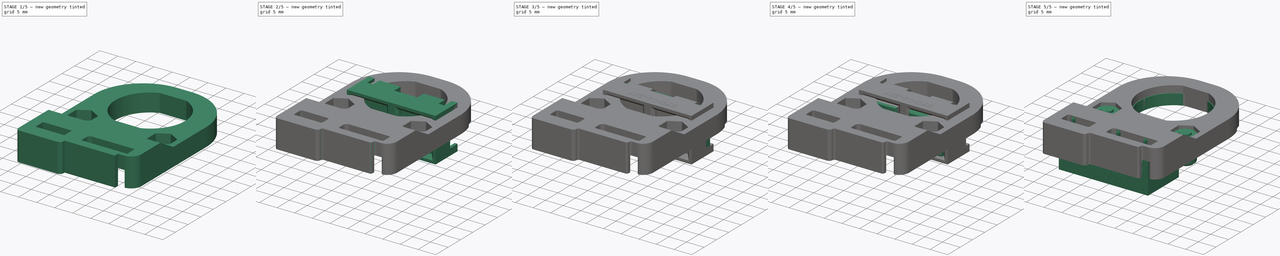
[diagram: build sequence overview — one tinted view per stage of 5, left to right]
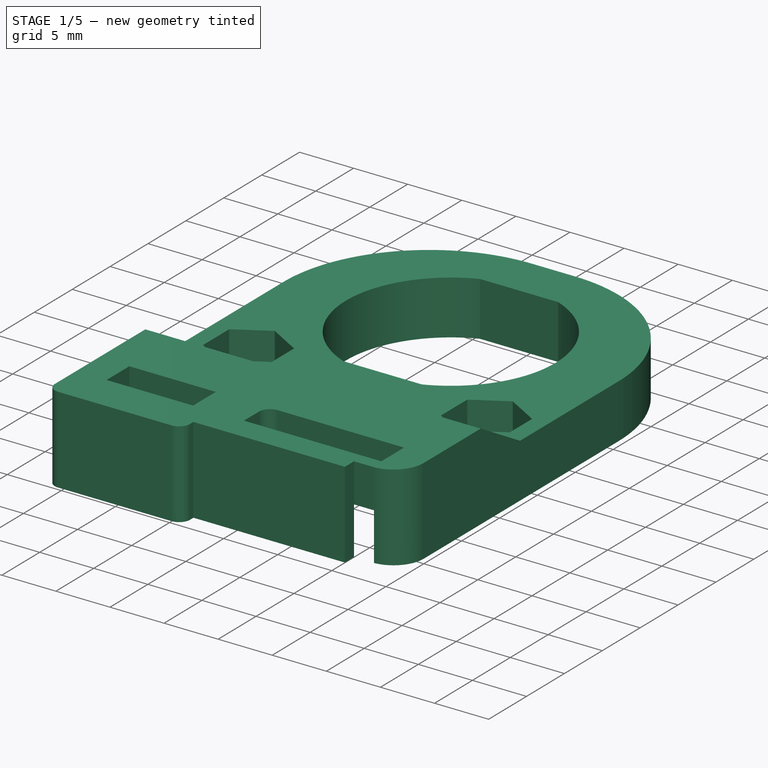
[diagram: stage 1 of 5 — iso view after this stage's code; geometry added in this stage tinted green]
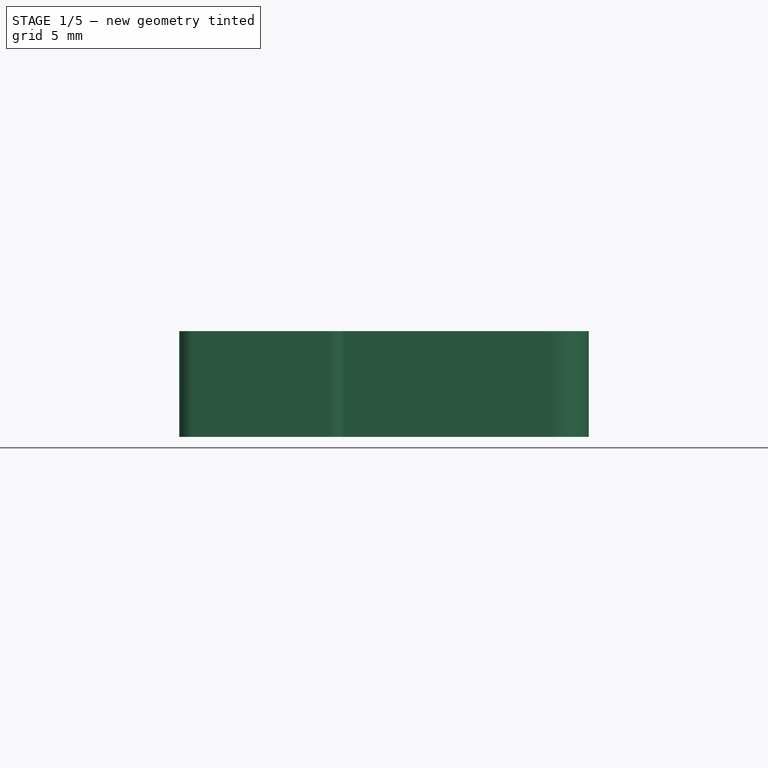
[diagram: stage 1 of 5 — front view after this stage's code; geometry added in this stage tinted green]
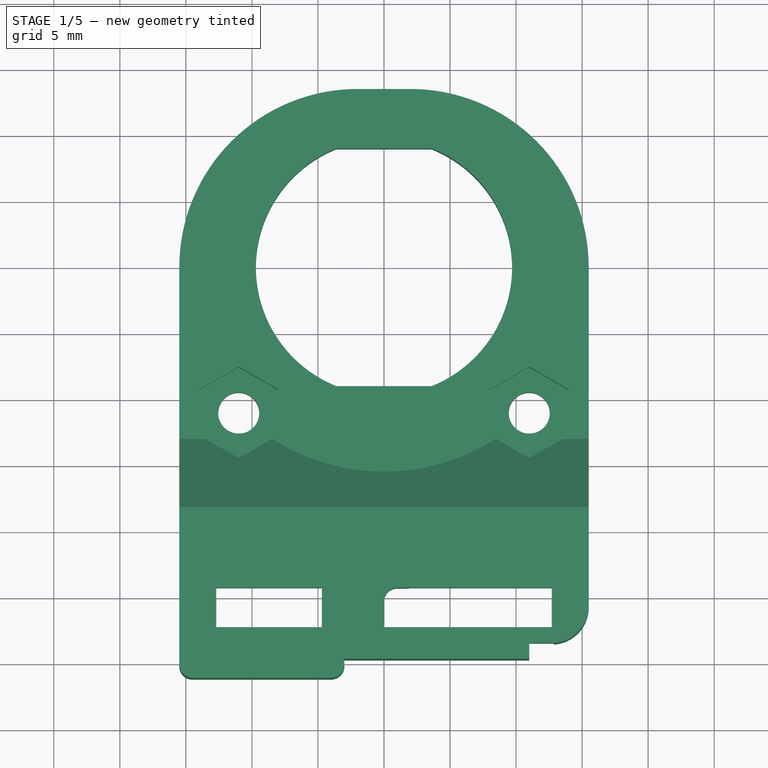
[diagram: stage 1 of 5 — top view after this stage's code; geometry added in this stage tinted green]
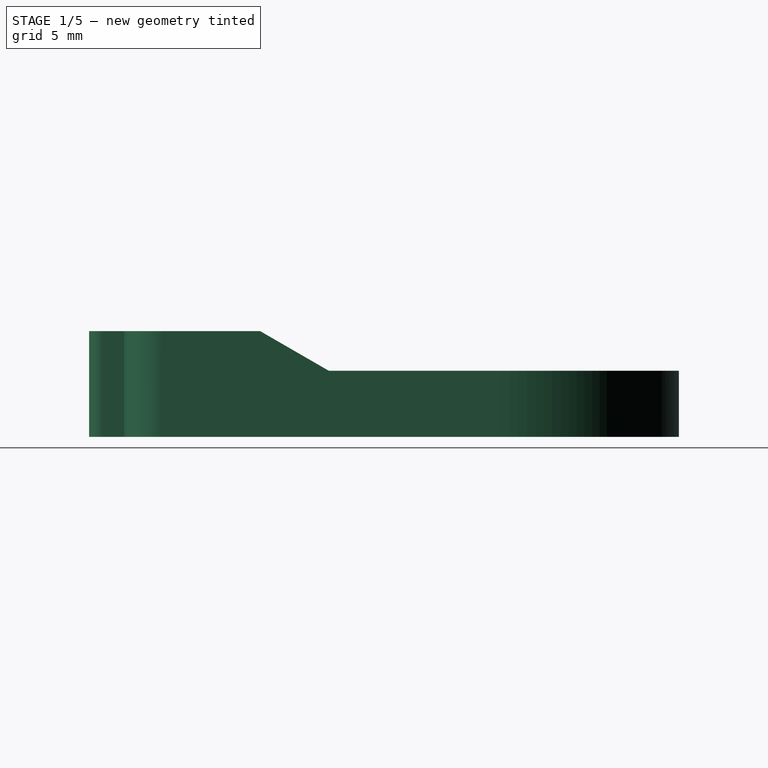
[diagram: stage 1 of 5 — right view after this stage's code; geometry added in this stage tinted green]
FCSTD DOCUMENT  (FreeCAD 0.18.4R)
Label: MJ_3d_holder_left_v3-asm
License: All rights reserved
LicenseURL: http://en.wikipedia.org/wiki/All_rights_reserved
objects: Sketcher::SketchObject×20, PartDesign::Pad×10, PartDesign::Pocket×10, PartDesign::Body×7, PartDesign::Chamfer×6, Part::Feature×5, PartDesign::Fillet×5, Part::FeaturePython×4, PartDesign::Plane×2, PartDesign::FeatureBase×1, Part::Part2DObjectPython×1, Part::Extrusion×1, Part::Compound×1, PartDesign::Draft×1, App::DocumentObjectGroup×1
note: 94 computed .brp shape members not serialized (recipe doc carries the construction recipe); baked Part::Feature solids carry a one-line shape summary decoded from their .brp

FEATURE [Sketcher::SketchObject] Sketch026
  MapMode = 5
  Support = -> [XY_Plane008]
  sketch-geometry (37):
    g0: ArcOfCircle CenterX=0 CenterY=0 CenterZ=0 NormalX=0 NormalY=0 NormalZ=1 AngleXU=0 Radius=9.7 StartAngle=1.95303 EndAngle=4.33016
    g1: LineSegment StartX=-3.61801 StartY=9 StartZ=0 EndX=3.61801 EndY=9 EndZ=0
    g2: LineSegment StartX=3.61801 StartY=-9 StartZ=0 EndX=-3.61801 EndY=-9 EndZ=0
    g3: ArcOfCircle CenterX=0 CenterY=0 CenterZ=0 NormalX=0 NormalY=0 NormalZ=1 AngleXU=0 Radius=9.7 StartAngle=5.09462 EndAngle=7.47175
    g4: GeomPoint X=0 Y=-22 Z=0
    g5: LineSegment [constr] StartX=-12.7 StartY=-15.65 StartZ=0 EndX=12.7 EndY=-15.65 EndZ=0
    g6: LineSegment [constr] StartX=12.7 StartY=-15.65 StartZ=0 EndX=12.7 EndY=-28.35 EndZ=0
    g7: LineSegment [constr] StartX=12.7 StartY=-28.35 StartZ=0 EndX=-12.7 EndY=-28.35 EndZ=0
    g8: LineSegment [constr] StartX=-12.7 StartY=-28.35 StartZ=0 EndX=-12.7 EndY=-15.65 EndZ=0
    g9: Circle [constr] CenterX=-10.16 CenterY=-25.81 CenterZ=0 NormalX=0 NormalY=0 NormalZ=1 AngleXU=0 Radius=0.5
    g10: Circle [constr] CenterX=2.54 CenterY=-25.81 CenterZ=0 NormalX=0 NormalY=0 NormalZ=1 AngleXU=0 Radius=0.5
    g11: Circle [constr] CenterX=10.16 CenterY=-25.81 CenterZ=0 NormalX=0 NormalY=0 NormalZ=1 AngleXU=0 Radius=0.5
    g12: Circle CenterX=-11 CenterY=-11 CenterZ=0 NormalX=0 NormalY=0 NormalZ=1 AngleXU=0 Radius=1.55
    g13: Circle CenterX=11 CenterY=-11 CenterZ=0 NormalX=0 NormalY=0 NormalZ=1 AngleXU=0 Radius=1.55
    g14: LineSegment StartX=-2 StartY=13.5 StartZ=0 EndX=2 EndY=13.5 EndZ=0
    g15: LineSegment StartX=15.5 StartY=-1.7e-15 StartZ=0 EndX=15.5 EndY=-25.7 EndZ=0
    g16: LineSegment StartX=-15.5 StartY=-31.15 StartZ=0 EndX=-15.5 EndY=0 EndZ=0
    g17: ArcOfCircle CenterX=-2 CenterY=1e-16 CenterZ=0 NormalX=0 NormalY=0 NormalZ=1 AngleXU=0 Radius=13.5 StartAngle=1.5708 EndAngle=3.14159
    g18: ArcOfCircle CenterX=2 CenterY=0 CenterZ=0 NormalX=0 NormalY=0 NormalZ=1 AngleXU=0 Radius=13.5 StartAngle=0 EndAngle=1.5708
    g19: LineSegment StartX=-12.7 StartY=-24.31 StartZ=0 EndX=-4.7 EndY=-24.31 EndZ=0
    g20: LineSegment StartX=-4.7 StartY=-24.31 StartZ=0 EndX=-4.7 EndY=-27.31 EndZ=0
    g21: LineSegment StartX=-4.7 StartY=-27.31 StartZ=0 EndX=-12.7 EndY=-27.31 EndZ=0
    g22: LineSegment StartX=-12.7 StartY=-27.31 StartZ=0 EndX=-12.7 EndY=-24.31 EndZ=0
    g23: LineSegment StartX=8e-16 StartY=-24.31 StartZ=0 EndX=12.7 EndY=-24.31 EndZ=0
    g24: LineSegment StartX=12.7 StartY=-24.31 StartZ=0 EndX=12.7 EndY=-27.31 EndZ=0
    g25: LineSegment StartX=12.7 StartY=-27.31 StartZ=0 EndX=0 EndY=-27.31 EndZ=0
    g26: LineSegment StartX=8e-16 StartY=-27.31 StartZ=0 EndX=8e-16 EndY=-24.31 EndZ=0
    g27: GeomPoint X=6.35 Y=-25.81 Z=0
    g28: LineSegment StartX=11 StartY=-29.7 StartZ=0 EndX=11 EndY=-28.5 EndZ=0
    g29: LineSegment StartX=11 StartY=-28.5 StartZ=0 EndX=12.7 EndY=-28.5 EndZ=0
    g30: Circle [constr] CenterX=-1e-16 CenterY=-30.89 CenterZ=0 NormalX=0 NormalY=0 NormalZ=1 AngleXU=0 Radius=0.5
    g31: Circle [constr] CenterX=2.54 CenterY=-30.89 CenterZ=0 NormalX=0 NormalY=0 NormalZ=1 AngleXU=0 Radius=0.5
    g32: Circle [constr] CenterX=5.08 CenterY=-30.89 CenterZ=0 NormalX=0 NormalY=0 NormalZ=1 AngleXU=0 Radius=0.5
    g33: LineSegment StartX=-3 StartY=-31.15 StartZ=0 EndX=-3 EndY=-29.7 EndZ=0
    g34: LineSegment StartX=-3 StartY=-29.7 StartZ=0 EndX=11 EndY=-29.7 EndZ=0
    g35: LineSegment StartX=-3 StartY=-31.15 StartZ=0 EndX=-15.5 EndY=-31.15 EndZ=0
    g36: ArcOfCircle CenterX=12.7 CenterY=-25.7 CenterZ=0 NormalX=0 NormalY=0 NormalZ=1 AngleXU=0 Radius=2.8 StartAngle=4.71239 EndAngle=6.28319
  constraints (101):
    c: Coincident(g0,g-1)
    c: Diameter(g0) = 19.4
    c: Horizontal(g2)
    c: Coincident(g0,g1)
    c: Coincident(g3,g1)
    c: Symmetric(g0,g3,g-2)
    c: Equal(g1,g2)
    c: Symmetric(g0,g2,g-1)
    c: DistanceY(g2,g3) = 18
    c: PointOnObject(g0,g2)
    c: PointOnObject(g3,g2)
    c: Coincident(g0,g3)
    c: PointOnObject(g4,g-2)
    c: DistanceY(g4,g0) = 22
    c: Coincident(g5,g6)
    c: Coincident(g6,g7)
    c: Coincident(g7,g8)
    c: Coincident(g8,g5)
    c: Horizontal(g5)
    c: Horizontal(g7)
    c: Vertical(g6)
    c: Vertical(g8)
    c: DistanceY(g6,g6) = 12.7
    c: DistanceX(g5,g5) = 25.4
    c: Symmetric(g5,g6,g4)
    c: Horizontal(g11,g10)
    c: Horizontal(g10,g9)
    c: Equal(g11,g10)
    c: Equal(g10,g9)
    c: Diameter(g11) = 1
    c: DistanceX(g4,g10) = 2.54
    c: DistanceX(g9,g4) = 10.16
    c: DistanceX(g10,g11) = 7.62
    c: Equal(g13,g12)
    c: Symmetric(g12,g13,g-2)
    c: DistanceX(g12,g13) = 22
    c: Diameter(g13) = 3.1
    c: DistanceY(g12,g0) = 11
    c: Coincident(g35,g16)
    c: Vertical(g15)
    c: Vertical(g16)
    c: Tangent(g16,g17) = 1.5708
    c: Tangent(g14,g17) = 1.5708
    c: Tangent(g14,g18) = 1.5708
    c: Tangent(g15,g18) = 1.5708
    c: Equal(g17,g18)
    c: Radius(g18) = 13.5
    c: Symmetric(g14,g14,g-2)
    c: DistanceX(g16,g5) = 2.8
    c: DistanceY(g35,g7) = 2.8
    c: Coincident(g19,g20)
    c: Coincident(g20,g21)
    c: Coincident(g21,g22)
    c: Coincident(g22,g19)
    c: Horizontal(g19)
    c: Horizontal(g21)
    c: Vertical(g20)
    c: Vertical(g22)
    c: Coincident(g23,g24)
    c: Coincident(g24,g25)
    c: Coincident(g25,g26)
    c: Coincident(g26,g23)
    c: Horizontal(g23)
    c: Horizontal(g25)
    c: Vertical(g24)
    c: Vertical(g26)
    c: Equal(g20,g26)
    c: DistanceY(g22,g22) = 3
    c: DistanceX(g21,g21) = 8
    c: DistanceX(g25,g25) = 12.7
    c: DistanceX(g19,g9) = 2.54
    c: Symmetric(g10,g11,g27)
    c: DistanceY(g10,g4) = 3.81
    c: Horizontal(g19,g23)
    c: Symmetric(g23,g24,g27)
    c: Horizontal(g18,g0)
    c: Vertical(g28)
    c: Coincident(g28,g29)
    c: Horizontal(g29)
    c: Equal(g32,g31)
    c: Equal(g31,g30)
    c: Horizontal(g32,g31)
    c: Horizontal(g31,g30)
    c: Diameter(g30) = 1
    c: Vertical(g31,g10)
    c: DistanceX(g31,g32) = 2.54
    c: DistanceX(g30,g31) = 2.54
    c: DistanceY(g30,g10) = 5.08
    c: Vertical(g33)
    c: Coincident(g33,g34)
    c: Horizontal(g34)
    c: Coincident(g28,g34)
    c: DistanceX(g35,g35) = 12.5
    c: DistanceY(g33,g7) = 1.35
    c: DistanceY(g28,g28) = 1.2
    c: DistanceX(g34,g34) = 14
    c: Tangent(g15,g36) = 1.5708
    c: Tangent(g29,g36) = -1.5708
    c: Vertical(g29,g6)
    c: Horizontal(g35)
    c: Coincident(g33,g35)
FEATURE [PartDesign::Pad] Pad010
  Length = 8
  Length2 = 100
  Profile = -> Sketch026
  Type = 0
FEATURE [Sketcher::SketchObject] Sketch022
  MapMode = 5
  Placement = pos=(0,0,8) rot=(0,0,1;0rad)
  Support = -> [Pad010]
  sketch-geometry (9):
    g0: GeomPoint X=0 Y=-22 Z=0
    g1: LineSegment [constr] StartX=-12.7 StartY=-15.65 StartZ=0 EndX=12.7 EndY=-15.65 EndZ=0
    g2: LineSegment [constr] StartX=12.7 StartY=-15.65 StartZ=0 EndX=12.7 EndY=-28.35 EndZ=0
    g3: LineSegment [constr] StartX=12.7 StartY=-28.35 StartZ=0 EndX=-12.7 EndY=-28.35 EndZ=0
    g4: LineSegment [constr] StartX=-12.7 StartY=-28.35 StartZ=0 EndX=-12.7 EndY=-15.65 EndZ=0
    g5: LineSegment StartX=-15.5 StartY=-13 StartZ=0 EndX=15.5 EndY=-13 EndZ=0
    g6: LineSegment StartX=15.5 StartY=-13 StartZ=0 EndX=15.5 EndY=13.5 EndZ=0
    g7: LineSegment StartX=15.5 StartY=13.5 StartZ=0 EndX=-15.5 EndY=13.5 EndZ=0
    g8: LineSegment StartX=-15.5 StartY=13.5 StartZ=0 EndX=-15.5 EndY=-13 EndZ=0
  constraints (24):
    c: PointOnObject(g0,g-2)
    c: DistanceY(g0,g-1) = 22
    c: Coincident(g1,g2)
    c: Coincident(g2,g3)
    c: Coincident(g3,g4)
    c: Coincident(g4,g1)
    c: Horizontal(g1)
    c: Horizontal(g3)
    c: Vertical(g2)
    c: Vertical(g4)
    c: DistanceY(g2,g2) = 12.7
    c: DistanceX(g3,g3) = 25.4
    c: Symmetric(g1,g2,g0)
    c: Coincident(g5,g6)
    c: Coincident(g6,g7)
    c: Coincident(g7,g8)
    c: Coincident(g8,g5)
    c: Horizontal(g7)
    c: Vertical(g6)
    c: Vertical(g8)
    c: DistanceX(g5,g5) = 31
    c: Symmetric(g5,g5,g-2)
    c: DistanceY(g5,g-1) = 13
    c: DistanceY(g-1,g6) = 13.5
FEATURE [PartDesign::Pocket] Pocket010
  BaseFeature = -> Pad010
  Length = 3
  Length2 = 100
  Profile = -> Sketch022
  Type = 0
FEATURE [Sketcher::SketchObject] Sketch021
  MapMode = 5
  Placement = pos=(0,0,5) rot=(0,0,1;0rad)
  Support = -> [Pocket010]
  sketch-geometry (14):
    g0: LineSegment StartX=-8 StartY=-12.7321 StartZ=0 EndX=-8 EndY=-9.26795 EndZ=0
    g1: LineSegment StartX=-8 StartY=-9.26795 StartZ=0 EndX=-11 EndY=-7.5359 EndZ=0
    g2: LineSegment StartX=-11 StartY=-7.5359 StartZ=0 EndX=-14 EndY=-9.26795 EndZ=0
    g3: LineSegment StartX=-14 StartY=-9.26795 StartZ=0 EndX=-14 EndY=-12.7321 EndZ=0
    g4: LineSegment StartX=-14 StartY=-12.7321 StartZ=0 EndX=-11 EndY=-14.4641 EndZ=0
    g5: LineSegment StartX=-11 StartY=-14.4641 StartZ=0 EndX=-8 EndY=-12.7321 EndZ=0
    g6: Circle [constr] CenterX=-11 CenterY=-11 CenterZ=0 NormalX=0 NormalY=0 NormalZ=1 AngleXU=0 Radius=3.4641
    g7: LineSegment StartX=14 StartY=-12.7321 StartZ=0 EndX=14 EndY=-9.26795 EndZ=0
    g8: LineSegment StartX=14 StartY=-9.26795 StartZ=0 EndX=11 EndY=-7.5359 EndZ=0
    g9: LineSegment StartX=11 StartY=-7.5359 StartZ=0 EndX=8 EndY=-9.26795 EndZ=0
    g10: LineSegment StartX=8 StartY=-9.26795 StartZ=0 EndX=8 EndY=-12.7321 EndZ=0
    g11: LineSegment StartX=8 StartY=-12.7321 StartZ=0 EndX=11 EndY=-14.4641 EndZ=0
    g12: LineSegment StartX=11 StartY=-14.4641 StartZ=0 EndX=14 EndY=-12.7321 EndZ=0
    g13: Circle [constr] CenterX=11 CenterY=-11 CenterZ=0 NormalX=0 NormalY=0 NormalZ=1 AngleXU=0 Radius=3.4641
  constraints (33):
    c: Coincident(g0,g1)
    c: Coincident(g1,g2)
    c: Coincident(g2,g3)
    c: Coincident(g3,g4)
    c: Coincident(g4,g5)
    c: Coincident(g5,g0)
    c: Equal(g0, g1-g5) x5
    c: PointOnObject(g0,g6)
    c: PointOnObject(g1,g6)
    c: PointOnObject(g2,g6)
    c: PointOnObject(g3,g6)
    c: PointOnObject(g4,g6)
    c: PointOnObject(g5,g6)
    c: Coincident(g7,g8)
    c: Coincident(g8,g9)
    c: Coincident(g9,g10)
    c: Coincident(g10,g11)
    c: Coincident(g11,g12)
    c: Coincident(g12,g7)
    c: Equal(g7, g8-g12) x5
    c: PointOnObject(g7,g13)
    c: PointOnObject(g8,g13)
    c: PointOnObject(g9,g13)
    c: PointOnObject(g10,g13)
    c: PointOnObject(g11,g13)
    c: PointOnObject(g12,g13)
    c: DistanceX(g6,g13) = 22
    c: Symmetric(g6,g13,g-2)
    c: DistanceY(g13,g-1) = 11
    c: DistanceX(g3,g0) = 6
    c: DistanceX(g10,g7) = 6
    c: Vertical(g3)
    c: Vertical(g7)
FEATURE [PartDesign::Draft] Draft001
  Angle = 60
  Base = -> Pocket010 [Face9]
  BaseFeature = -> Pocket010
  NeutralPlane = -> Pocket010 [Face8]
FEATURE [PartDesign::Pocket] Pocket009
  BaseFeature = -> Draft001
  Length = 5.2
  Length2 = 100
  Midplane = true
  Profile = -> Sketch021
  Type = 0
FEATURE [Sketcher::SketchObject] Sketch025
  MapMode = 5
  Placement = pos=(0,0,5) rot=(0,0,1;0rad)
  Support = -> [Pocket009]
  sketch-geometry (1):
    g0: Circle CenterX=0 CenterY=0 CenterZ=0 NormalX=0 NormalY=0 NormalZ=1 AngleXU=0 Radius=15.5
  constraints (2):
    c: Coincident(g0,g-1)
    c: Diameter(g0) = 31
FEATURE [PartDesign::Pocket] Pocket012
  BaseFeature = -> Pocket009
  Length = 3
  Length2 = 100
  Profile = -> Sketch025
  Reversed = true
  Type = 0
FEATURE [Sketcher::SketchObject] Sketch020
  MapMode = 5
  Placement = pos=(0,0,0) rot=(1,0,0;3.14159rad)
  Support = -> [Pocket012]
  sketch-geometry (5):
    g0: GeomPoint X=0 Y=22 Z=0
    g1: LineSegment StartX=12.85 StartY=15.5 StartZ=0 EndX=-12.85 EndY=15.5 EndZ=0
    g2: LineSegment StartX=-12.85 StartY=15.5 StartZ=0 EndX=-12.85 EndY=28.5 EndZ=0
    g3: LineSegment StartX=-12.85 StartY=28.5 StartZ=0 EndX=12.85 EndY=28.5 EndZ=0
    g4: LineSegment StartX=12.85 StartY=28.5 StartZ=0 EndX=12.85 EndY=15.5 EndZ=0
  constraints (13):
    c: PointOnObject(g0,g-2)
    c: DistanceY(g-1,g0) = 22
    c: Coincident(g1,g2)
    c: Coincident(g2,g3)
    c: Coincident(g3,g4)
    c: Coincident(g4,g1)
    c: Horizontal(g1)
    c: Horizontal(g3)
    c: Vertical(g2)
    c: Vertical(g4)
    c: DistanceY(g2,g2) = 13
    c: DistanceX(g3,g3) = 25.7
    c: Symmetric(g1,g2,g0)
FEATURE [PartDesign::Pocket] Pocket014
  BaseFeature = -> Pocket012
  Length = 3
  Length2 = 100
  Profile = -> Sketch020
  Type = 0
FEATURE [Sketcher::SketchObject] Sketch023
  MapMode = 5
  Placement = pos=(0,0,3) rot=(1,0,0;3.14159rad)
  Support = -> [Pocket014]
  sketch-geometry (35):
    g0: GeomPoint X=0 Y=22 Z=0
    g1: LineSegment [constr] StartX=12.85 StartY=15.5 StartZ=0 EndX=-12.85 EndY=15.5 EndZ=0
    g2: LineSegment [constr] StartX=-12.85 StartY=15.5 StartZ=0 EndX=-12.85 EndY=28.5 EndZ=0
    g3: LineSegment [constr] StartX=-12.85 StartY=28.5 StartZ=0 EndX=12.85 EndY=28.5 EndZ=0
    g4: LineSegment [constr] StartX=12.85 StartY=28.5 StartZ=0 EndX=12.85 EndY=15.5 EndZ=0
    g5: LineSegment [constr] StartX=12.85 StartY=20.5 StartZ=0 EndX=-12.85 EndY=20.5 EndZ=0
    g6: LineSegment [constr] StartX=-12.85 StartY=20.5 StartZ=0 EndX=-12.85 EndY=23.5 EndZ=0
    g7: LineSegment [constr] StartX=-12.85 StartY=23.5 StartZ=0 EndX=12.85 EndY=23.5 EndZ=0
    g8: LineSegment [constr] StartX=12.85 StartY=23.5 StartZ=0 EndX=12.85 EndY=20.5 EndZ=0
    g9: LineSegment [constr] StartX=1.5 StartY=15.5 StartZ=0 EndX=-1.5 EndY=15.5 EndZ=0
    g10: LineSegment [constr] StartX=-1.5 StartY=15.5 StartZ=0 EndX=-1.5 EndY=28.5 EndZ=0
    g11: LineSegment [constr] StartX=-1.5 StartY=28.5 StartZ=0 EndX=1.5 EndY=28.5 EndZ=0
    g12: LineSegment [constr] StartX=1.5 StartY=28.5 StartZ=0 EndX=1.5 EndY=15.5 EndZ=0
    g13: GeomPoint X=12.85 Y=22 Z=0
    g14: Circle CenterX=0 CenterY=22 CenterZ=0 NormalX=0 NormalY=0 NormalZ=1 AngleXU=0 Radius=1.8
    g15: LineSegment StartX=-12.85 StartY=20.5 StartZ=0 EndX=-3.5 EndY=20.5 EndZ=0
    g16: LineSegment StartX=-1.5 StartY=18.5 StartZ=0 EndX=-1.5 EndY=15.5 EndZ=0
    g17: LineSegment StartX=-1.5 StartY=15.5 StartZ=0 EndX=-12.85 EndY=15.5 EndZ=0
    g18: LineSegment StartX=-12.85 StartY=15.5 StartZ=0 EndX=-12.85 EndY=20.5 EndZ=0
    g19: LineSegment StartX=1.5 StartY=15.5 StartZ=0 EndX=12.85 EndY=15.5 EndZ=0
    g20: LineSegment StartX=12.85 StartY=15.5 StartZ=0 EndX=12.85 EndY=20.5 EndZ=0
    g21: LineSegment StartX=12.85 StartY=20.5 StartZ=0 EndX=3.5 EndY=20.5 EndZ=0
    g22: LineSegment StartX=1.5 StartY=18.5 StartZ=0 EndX=1.5 EndY=15.5 EndZ=0
    g23: LineSegment StartX=-12.85 StartY=23.5 StartZ=0 EndX=-3.5 EndY=23.5 EndZ=0
    g24: LineSegment StartX=-1.5 StartY=25.5 StartZ=0 EndX=-1.5 EndY=28.5 EndZ=0
    g25: LineSegment StartX=-1.5 StartY=28.5 StartZ=0 EndX=-12.85 EndY=28.5 EndZ=0
    g26: LineSegment StartX=-12.85 StartY=28.5 StartZ=0 EndX=-12.85 EndY=23.5 EndZ=0
    g27: LineSegment StartX=1.5 StartY=28.5 StartZ=0 EndX=12.85 EndY=28.5 EndZ=0
    g28: LineSegment StartX=12.85 StartY=28.5 StartZ=0 EndX=12.85 EndY=23.5 EndZ=0
    g29: LineSegment StartX=12.85 StartY=23.5 StartZ=0 EndX=3.5 EndY=23.5 EndZ=0
    g30: LineSegment StartX=1.5 StartY=25.5 StartZ=0 EndX=1.5 EndY=28.5 EndZ=0
    g31: ArcOfCircle CenterX=3.5 CenterY=25.5 CenterZ=0 NormalX=0 NormalY=0 NormalZ=1 AngleXU=0 Radius=2 StartAngle=3.14159 EndAngle=4.71239
    g32: ArcOfCircle CenterX=3.5 CenterY=18.5 CenterZ=0 NormalX=0 NormalY=0 NormalZ=1 AngleXU=0 Radius=2 StartAngle=1.5708 EndAngle=3.14159
    g33: ArcOfCircle CenterX=-3.5 CenterY=18.5 CenterZ=0 NormalX=0 NormalY=0 NormalZ=1 AngleXU=0 Radius=2 StartAngle=6e-16 EndAngle=1.5708
    g34: ArcOfCircle CenterX=-3.5 CenterY=25.5 CenterZ=0 NormalX=0 NormalY=0 NormalZ=1 AngleXU=0 Radius=2 StartAngle=4.71239 EndAngle=6.28319
  constraints (87):
    c: PointOnObject(g0,g-2)
    c: DistanceY(g-1,g0) = 22
    c: Coincident(g1,g2)
    c: Coincident(g2,g3)
    c: Coincident(g3,g4)
    c: Coincident(g4,g1)
    c: Horizontal(g1)
    c: Horizontal(g3)
    c: Vertical(g2)
    c: Vertical(g4)
    c: DistanceY(g2,g2) = 13
    c: DistanceX(g1,g1) = 25.7
    c: Symmetric(g1,g2,g0)
    c: Coincident(g5,g6)
    c: Coincident(g6,g7)
    c: Coincident(g7,g8)
    c: Coincident(g8,g5)
    c: Horizontal(g5)
    c: Horizontal(g7)
    c: Vertical(g6)
    c: Vertical(g8)
    c: PointOnObject(g5,g4)
    c: PointOnObject(g6,g2)
    c: Coincident(g9,g10)
    c: Coincident(g10,g11)
    c: Coincident(g11,g12)
    c: Coincident(g12,g9)
    c: Horizontal(g11)
    c: Vertical(g10)
    c: Vertical(g12)
    c: PointOnObject(g9,g1)
    c: PointOnObject(g10,g3)
    c: DistanceY(g5,g7) = 3
    c: DistanceX(g9,g9) = 3
    c: Symmetric(g9,g9,g-2)
    c: Symmetric(g5,g7,g13)
    c: Horizontal(g13,g0)
    c: Coincident(g14,g0)
    c: Diameter(g14) = 3.6
    c: Coincident(g16,g17)
    c: Coincident(g17,g18)
    c: Coincident(g18,g15)
    c: Horizontal(g15)
    c: Horizontal(g17)
    c: Vertical(g16)
    c: Vertical(g18)
    c: Coincident(g15,g5)
    c: Coincident(g16,g9)
    c: Coincident(g19,g20)
    c: Coincident(g20,g21)
    c: Coincident(g22,g19)
    c: Horizontal(g19)
    c: Horizontal(g21)
    c: Vertical(g20)
    c: Vertical(g22)
    c: Coincident(g19,g9)
    c: Coincident(g20,g5)
    c: Coincident(g24,g25)
    c: Coincident(g25,g26)
    c: Coincident(g26,g23)
    c: Horizontal(g23)
    c: Horizontal(g25)
    c: Vertical(g24)
    c: Vertical(g26)
    c: Coincident(g23,g6)
    c: Coincident(g24,g10)
    c: Coincident(g27,g28)
    c: Coincident(g28,g29)
    c: Coincident(g30,g27)
    c: Horizontal(g27)
    c: Horizontal(g29)
    c: Vertical(g28)
    c: Vertical(g30)
    c: Coincident(g27,g11)
    c: Coincident(g28,g7)
    c: Tangent(g30,g31) = 1.5708
    c: Tangent(g29,g31) = 1.5708
    c: Tangent(g21,g32) = -1.5708
    c: Tangent(g22,g32) = -1.5708
    c: Tangent(g16,g33) = 1.5708
    c: Tangent(g15,g33) = 1.5708
    c: Tangent(g23,g34) = -1.5708
    c: Tangent(g24,g34) = -1.5708
    c: Equal(g34,g31)
    c: Equal(g31,g32)
    c: Equal(g32,g33)
    c: Radius(g31) = 2
FEATURE [PartDesign::Pocket] Pocket013
  BaseFeature = -> Pocket014
  Length = 1.4
  Length2 = 100
  Profile = -> Sketch023
  Type = 0
FEATURE [PartDesign::Fillet] Fillet006
  Base = -> Pocket013 [Edge1,Edge2,Edge111]
  BaseFeature = -> Pocket013
  Radius = 1
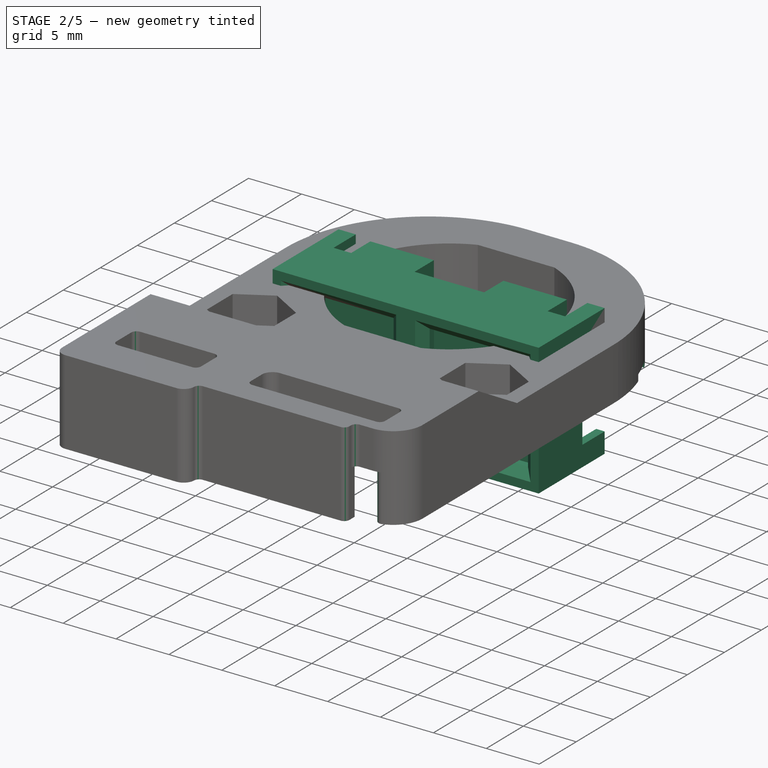
[diagram: stage 2 of 5 — iso view after this stage's code; geometry added in this stage tinted green]
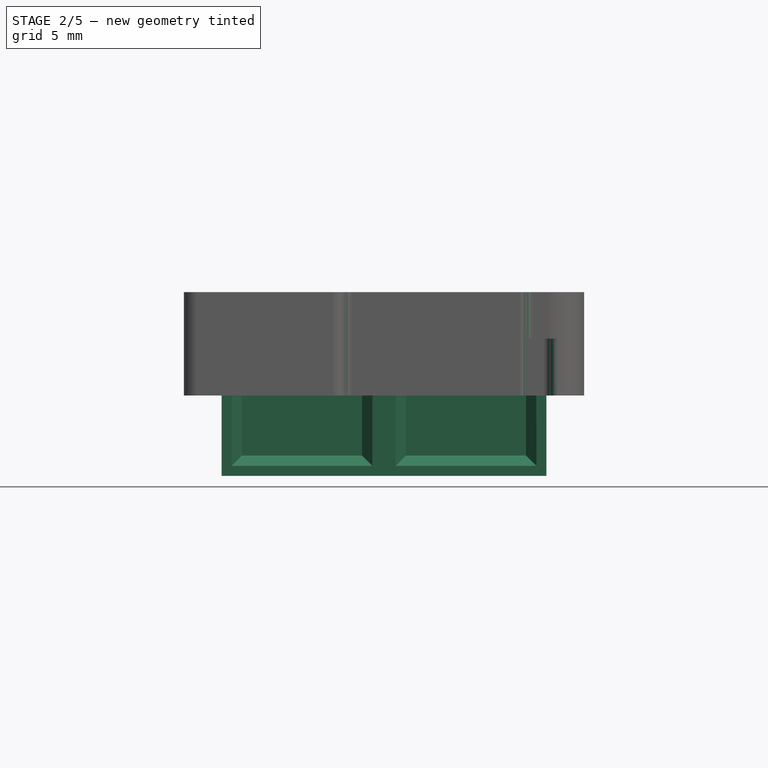
[diagram: stage 2 of 5 — front view after this stage's code; geometry added in this stage tinted green]
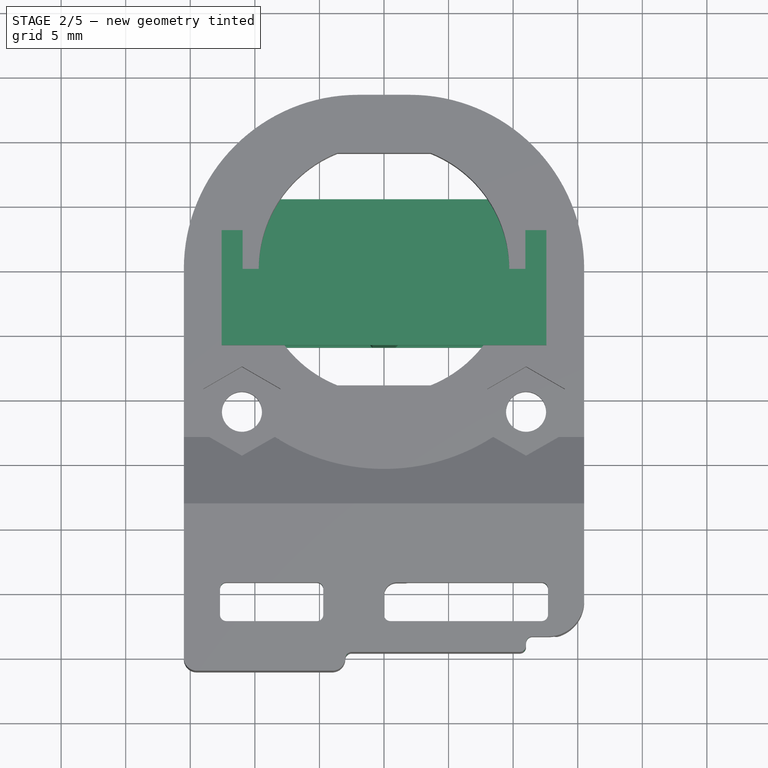
[diagram: stage 2 of 5 — top view after this stage's code; geometry added in this stage tinted green]
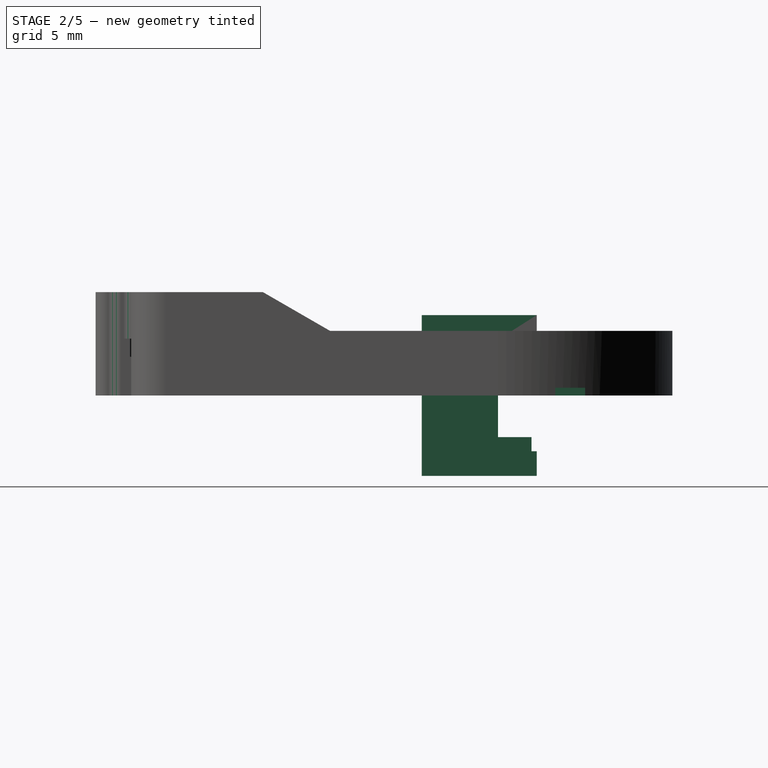
[diagram: stage 2 of 5 — right view after this stage's code; geometry added in this stage tinted green]
FEATURE [Part::Feature] Part__Feature001  label="BTN_A-Brass_pin-5.75mm"
  Placement = pos=(12.7,0,0) rot=(0,0,1;0rad)
  shape: bbox 0.7 x 5.75 x 0.7 mm, 14 faces (baked)
FEATURE [Part::Feature] Part__Feature002  label="BTN_B-Brass_pin-5.75mm"
  shape: bbox 0.7 x 5.75 x 0.7 mm, 14 faces (baked)
FEATURE [Sketcher::SketchObject] Sketch012
  MapMode = 5
  Placement = pos=(0,0,0) rot=(1,0,0;1.5708rad)
  Support = -> [XZ_Plane003]
  sketch-geometry (12):
    g0: LineSegment StartX=-11.725 StartY=5.425 StartZ=0 EndX=11.725 EndY=5.425 EndZ=0
    g1: LineSegment StartX=11.725 StartY=5.425 StartZ=0 EndX=11.725 EndY=4.275 EndZ=0
    g2: LineSegment StartX=11.725 StartY=4.275 StartZ=0 EndX=12.575 EndY=4.275 EndZ=0
    g3: LineSegment StartX=12.575 StartY=4.275 StartZ=0 EndX=12.575 EndY=-4.275 EndZ=0
    g4: LineSegment StartX=12.575 StartY=-4.275 StartZ=0 EndX=11.725 EndY=-4.275 EndZ=0
    g5: LineSegment StartX=11.725 StartY=-4.275 StartZ=0 EndX=11.725 EndY=-5.425 EndZ=0
    g6: LineSegment StartX=11.725 StartY=-5.425 StartZ=0 EndX=-11.725 EndY=-5.425 EndZ=0
    g7: LineSegment StartX=-11.725 StartY=-5.425 StartZ=0 EndX=-11.725 EndY=-4.275 EndZ=0
    g8: LineSegment StartX=-11.725 StartY=-4.275 StartZ=0 EndX=-12.575 EndY=-4.275 EndZ=0
    g9: LineSegment StartX=-12.575 StartY=-4.275 StartZ=0 EndX=-12.575 EndY=4.275 EndZ=0
    g10: LineSegment StartX=-12.575 StartY=4.275 StartZ=0 EndX=-11.725 EndY=4.275 EndZ=0
    g11: LineSegment StartX=-11.725 StartY=4.275 StartZ=0 EndX=-11.725 EndY=5.425 EndZ=0
  constraints (34):
    c: Horizontal(g0)
    c: Coincident(g0,g1)
    c: Vertical(g1)
    c: Coincident(g1,g2)
    c: Horizontal(g2)
    c: Coincident(g2,g3)
    c: Vertical(g3)
    c: Coincident(g3,g4)
    c: Horizontal(g4)
    c: Coincident(g4,g5)
    c: Vertical(g5)
    c: Coincident(g5,g6)
    c: Coincident(g6,g7)
    c: Vertical(g7)
    c: Coincident(g7,g8)
    c: Horizontal(g8)
    c: Coincident(g8,g9)
    c: Coincident(g9,g10)
    c: Coincident(g10,g11)
    c: Coincident(g11,g0)
    c: Equal(g11,g1)
    c: Equal(g1,g5)
    c: Equal(g5,g7)
    c: Equal(g2,g4)
    c: Equal(g4,g8)
    c: Equal(g8,g10)
    c: Equal(g3,g9)
    c: Equal(g0,g6)
    c: DistanceX(g9,g2) = 25.15
    c: DistanceY(g5,g0) = 10.85
    c: DistanceX(g10,g10) = 0.85
    c: DistanceY(g11,g11) = 1.15
    c: Symmetric(g6,g6,g-2)
    c: Symmetric(g9,g9,g-1)
FEATURE [Part::Feature] Part__Feature  label="COMMON-Brass_pin-5.75mm"
  Placement = pos=(20.32,0,0) rot=(0,0,1;0rad)
  shape: bbox 0.7 x 5.75 x 0.7 mm, 14 faces (baked)
FEATURE [Sketcher::SketchObject] Sketch013
  MapMode = 5
  Placement = pos=(0,0,0) rot=(1,0,0;1.5708rad)
  Support = -> [XZ_Plane004]
  sketch-geometry (4):
    g0: LineSegment StartX=-12.575 StartY=6.225 StartZ=0 EndX=12.575 EndY=6.225 EndZ=0
    g1: LineSegment StartX=12.575 StartY=6.225 StartZ=0 EndX=12.575 EndY=-6.225 EndZ=0
    g2: LineSegment StartX=12.575 StartY=-6.225 StartZ=0 EndX=-12.575 EndY=-6.225 EndZ=0
    g3: LineSegment StartX=-12.575 StartY=-6.225 StartZ=0 EndX=-12.575 EndY=6.225 EndZ=0
  constraints (10):
    c: Coincident(g0,g1)
    c: Coincident(g1,g2)
    c: Coincident(g2,g3)
    c: Coincident(g3,g0)
    c: Horizontal(g2)
    c: Vertical(g1)
    c: DistanceX(g0,g0) = 25.15
    c: DistanceY(g3,g3) = 12.45
    c: Symmetric(g0,g0,g-2)
    c: Symmetric(g2,g0,g-1)
FEATURE [PartDesign::Pad] Pad001
  Length = 5.9
  Length2 = 100
  Placement = pos=(0,0,0) rot=(1,0,0;1.5708rad)
  Profile = -> Sketch013
  Type = 0
FEATURE [PartDesign::Body] Body003  label="PCBBody"
  Group = -> [Sketch012,Pad008]
  Origin = -> Origin003
  Tip = -> Pad008
FEATURE [Sketcher::SketchObject] Sketch017
  MapMode = 5
  Support = -> [XY_Plane004]
  sketch-geometry (8):
    g0: LineSegment StartX=-10.375 StartY=5.5 StartZ=0 EndX=10.375 EndY=5.5 EndZ=0
    g1: LineSegment StartX=11.375 StartY=4.5 StartZ=0 EndX=11.375 EndY=1 EndZ=0
    g2: LineSegment StartX=10.375 StartY=0 StartZ=0 EndX=-10.375 EndY=0 EndZ=0
    g3: LineSegment StartX=-11.375 StartY=1 StartZ=0 EndX=-11.375 EndY=4.5 EndZ=0
    g4: ArcOfCircle CenterX=-10.375 CenterY=4.5 CenterZ=0 NormalX=0 NormalY=0 NormalZ=1 AngleXU=0 Radius=1 StartAngle=1.5708 EndAngle=3.14159
    g5: ArcOfCircle CenterX=10.375 CenterY=4.5 CenterZ=0 NormalX=0 NormalY=0 NormalZ=1 AngleXU=0 Radius=1 StartAngle=0 EndAngle=1.5708
    g6: ArcOfCircle CenterX=10.375 CenterY=1 CenterZ=0 NormalX=0 NormalY=0 NormalZ=1 AngleXU=0 Radius=1 StartAngle=4.71239 EndAngle=6.28319
    g7: ArcOfCircle CenterX=-10.375 CenterY=1 CenterZ=0 NormalX=0 NormalY=0 NormalZ=1 AngleXU=0 Radius=1 StartAngle=3.14159 EndAngle=4.71239
  constraints (19):
    c: Horizontal(g2)
    c: Vertical(g1)
    c: Vertical(g3)
    c: Tangent(g3,g4) = 1.5708
    c: Tangent(g0,g4) = 1.5708
    c: Tangent(g0,g5) = 1.5708
    c: Tangent(g1,g5) = 1.5708
    c: Tangent(g1,g6) = 1.5708
    c: Tangent(g2,g6) = 1.5708
    c: Tangent(g2,g7) = 1.5708
    c: Tangent(g3,g7) = 1.5708
    c: Radius(g4) = 1
    c: Equal(g5,g6)
    c: Equal(g6,g7)
    c: Equal(g7,g4)
    c: Symmetric(g0,g0,g-2)
    c: PointOnObject(g-1,g2)
    c: DistanceY(g-1,g0) = 5.5
    c: DistanceX(g3,g1) = 22.75
FEATURE [PartDesign::Pad] Pad007  label="LabelPad"
  Length = 0.05
  Length2 = 100
  Profile = -> Sketch017
  Type = 0
FEATURE [PartDesign::Body] Body004  label="LabelBody"
  BaseFeature = -> Pad007
  Group = -> [BaseFeature]
  Origin = -> Origin004
  Placement = pos=(0,0,6.2) rot=(0,0,1;3.14159rad)
  Tip = -> BaseFeature
FEATURE [Sketcher::SketchObject] Sketch018
  MapMode = 5
  Placement = pos=(0,-5.9,1.3e-15) rot=(1,0,0;1.5708rad)
  Support = -> [Pad001]
  sketch-geometry (11):
    g0: LineSegment StartX=-11 StartY=4.65 StartZ=0 EndX=-1.7 EndY=4.65 EndZ=0
    g1: LineSegment StartX=-1.7 StartY=4.65 StartZ=0 EndX=-1.7 EndY=-4.65 EndZ=0
    g2: LineSegment StartX=-1.7 StartY=-4.65 StartZ=0 EndX=-11 EndY=-4.65 EndZ=0
    g3: LineSegment StartX=-11 StartY=-4.65 StartZ=0 EndX=-11 EndY=4.65 EndZ=0
    g4: LineSegment [constr] StartX=-6.35 StartY=4.65 StartZ=0 EndX=-6.35 EndY=-4.65 EndZ=0
    g5: LineSegment StartX=1.7 StartY=4.65 StartZ=0 EndX=11 EndY=4.65 EndZ=0
    g6: LineSegment StartX=11 StartY=4.65 StartZ=0 EndX=11 EndY=-4.65 EndZ=0
    g7: LineSegment StartX=11 StartY=-4.65 StartZ=0 EndX=1.7 EndY=-4.65 EndZ=0
    g8: LineSegment StartX=1.7 StartY=-4.65 StartZ=0 EndX=1.7 EndY=4.65 EndZ=0
    g9: LineSegment [constr] StartX=6.35 StartY=4.65 StartZ=0 EndX=6.35 EndY=-4.65 EndZ=0
    g10: LineSegment [constr] StartX=-11 StartY=4.65 StartZ=0 EndX=1.7 EndY=4.65 EndZ=0
  constraints (31):
    c: Coincident(g0,g1)
    c: Coincident(g1,g2)
    c: Coincident(g2,g3)
    c: Coincident(g3,g0)
    c: Horizontal(g0)
    c: Horizontal(g2)
    c: Vertical(g1)
    c: DistanceY(g3,g3) = 9.3
    c: DistanceX(g0,g0) = 9.3
    c: Symmetric(g0,g2,g-1)
    c: PointOnObject(g4,g0)
    c: PointOnObject(g4,g2)
    c: Symmetric(g0,g0,g4)
    c: DistanceX(g4,g-1) = 6.35
    c: Coincident(g5,g6)
    c: Coincident(g6,g7)
    c: Coincident(g7,g8)
    c: Coincident(g8,g5)
    c: Horizontal(g5)
    c: Horizontal(g7)
    c: Vertical(g6)
    c: Equal(g3,g8) = 9.3
    c: Equal(g0,g5) = 9.3
    c: PointOnObject(g9,g5)
    c: PointOnObject(g9,g7)
    c: Symmetric(g5,g5,g9)
    c: Coincident(g0,g10)
    c: Coincident(g5,g10)
    c: Distance(g10) = 12.7
    c: Horizontal(g10)
    c: Vertical(g8)
FEATURE [PartDesign::Pocket] Pocket008
  BaseFeature = -> Pad001
  Length = 1.4
  Length2 = 100
  Placement = pos=(0,0,0) rot=(1,0,0;1.5708rad)
  Profile = -> Sketch018
  Type = 0
FEATURE [PartDesign::Chamfer] Chamfer
  Base = -> Pocket008 [Edge17,Edge20,Edge19,Edge18,Edge16,Edge13,Edge14,Edge15]
  BaseFeature = -> Pocket008
  Placement = pos=(0,0,0) rot=(1,0,0;1.5708rad)
  Size = 0.8
FEATURE [Sketcher::SketchObject] Sketch015
  ExternalGeometry = -> [Chamfer]
  MapMode = 5
  Placement = pos=(0,0,0) rot=(-1,0,0;1.5708rad)
  Support = -> [Chamfer]
  sketch-geometry (24):
    g0: LineSegment StartX=12.575 StartY=-4.315 StartZ=0 EndX=12.575 EndY=-6.225 EndZ=0
    g1: LineSegment StartX=12.575 StartY=-6.225 StartZ=0 EndX=10.945 EndY=-6.225 EndZ=0
    g2: LineSegment StartX=10.945 StartY=-6.225 StartZ=0 EndX=10.945 EndY=-5.425 EndZ=0
    g3: LineSegment StartX=10.945 StartY=-5.425 StartZ=0 EndX=11.775 EndY=-5.425 EndZ=0
    g4: LineSegment StartX=11.775 StartY=-5.425 StartZ=0 EndX=11.775 EndY=-4.315 EndZ=0
    g5: LineSegment StartX=11.775 StartY=-4.315 StartZ=0 EndX=12.575 EndY=-4.315 EndZ=0
    g6: LineSegment StartX=-10.945 StartY=-6.225 StartZ=0 EndX=-12.575 EndY=-6.225 EndZ=0
    g7: LineSegment StartX=-12.575 StartY=-6.225 StartZ=0 EndX=-12.575 EndY=-4.315 EndZ=0
    g8: LineSegment StartX=-12.575 StartY=-4.315 StartZ=0 EndX=-11.775 EndY=-4.315 EndZ=0
    g9: LineSegment StartX=-11.775 StartY=-4.315 StartZ=0 EndX=-11.775 EndY=-5.425 EndZ=0
    g10: LineSegment StartX=-11.775 StartY=-5.425 StartZ=0 EndX=-10.945 EndY=-5.425 EndZ=0
    g11: LineSegment StartX=-10.945 StartY=-5.425 StartZ=0 EndX=-10.945 EndY=-6.225 EndZ=0
    g12: LineSegment StartX=12.575 StartY=4.315 StartZ=0 EndX=12.575 EndY=6.225 EndZ=0
    g13: LineSegment StartX=12.575 StartY=6.225 StartZ=0 EndX=10.945 EndY=6.225 EndZ=0
    g14: LineSegment StartX=10.945 StartY=6.225 StartZ=0 EndX=10.945 EndY=5.425 EndZ=0
    g15: LineSegment StartX=10.945 StartY=5.425 StartZ=0 EndX=11.775 EndY=5.425 EndZ=0
    g16: LineSegment StartX=11.775 StartY=5.425 StartZ=0 EndX=11.775 EndY=4.315 EndZ=0
    g17: LineSegment StartX=11.775 StartY=4.315 StartZ=0 EndX=12.575 EndY=4.315 EndZ=0
    g18: LineSegment StartX=-11.775 StartY=4.315 StartZ=0 EndX=-11.775 EndY=5.425 EndZ=0
    g19: LineSegment StartX=-11.775 StartY=5.425 StartZ=0 EndX=-10.945 EndY=5.425 EndZ=0
    g20: LineSegment StartX=-10.945 StartY=5.425 StartZ=0 EndX=-10.945 EndY=6.225 EndZ=0
    g21: LineSegment StartX=-10.945 StartY=6.225 StartZ=0 EndX=-12.575 EndY=6.225 EndZ=0
    g22: LineSegment StartX=-12.575 StartY=6.225 StartZ=0 EndX=-12.575 EndY=4.315 EndZ=0
    g23: LineSegment StartX=-12.575 StartY=4.315 StartZ=0 EndX=-11.775 EndY=4.315 EndZ=0
  constraints (68):
    c: Vertical(g0)
    c: Coincident(g0,g1)
    c: Horizontal(g1)
    c: Coincident(g1,g2)
    c: Vertical(g2)
    c: Coincident(g2,g3)
    c: Horizontal(g3)
    c: Coincident(g3,g4)
    c: Vertical(g4)
    c: Coincident(g4,g5)
    c: Coincident(g5,g0)
    c: Horizontal(g5)
    c: DistanceX(g1,g1) = 1.63
    c: DistanceY(g0,g0) = 1.91
    c: DistanceY(g2,g2) = 0.8
    c: DistanceX(g5,g5) = 0.8
    c: Horizontal(g6)
    c: Coincident(g6,g7)
    c: Vertical(g7)
    c: Coincident(g7,g8)
    c: Horizontal(g8)
    c: Coincident(g8,g9)
    c: Vertical(g9)
    c: Coincident(g9,g10)
    c: Horizontal(g10)
    c: Coincident(g10,g11)
    c: Coincident(g11,g6)
    c: Vertical(g11)
    c: Equal(g6,g1)
    c: Equal(g7,g0)
    c: Equal(g8,g5)
    c: Equal(g11,g2)
    c: Vertical(g12)
    c: Coincident(g12,g13)
    c: Horizontal(g13)
    c: Coincident(g13,g14)
    c: Vertical(g14)
    c: Coincident(g14,g15)
    c: Horizontal(g15)
    c: Coincident(g15,g16)
    c: Vertical(g16)
    c: Coincident(g16,g17)
    c: Horizontal(g17)
    c: Vertical(g18)
    c: Coincident(g18,g19)
    c: Horizontal(g19)
    c: Coincident(g19,g20)
    c: Vertical(g20)
    c: Coincident(g20,g21)
    c: Horizontal(g21)
    c: Coincident(g21,g22)
    c: Vertical(g22)
    c: Coincident(g22,g23)
    c: Coincident(g23,g18)
    c: Horizontal(g23)
    c: Equal(g23,g8)
    c: Equal(g17,g5)
    c: Equal(g14,g20)
    c: Equal(g14,g2)
    c: Equal(g12,g22)
    c: Equal(g21,g13)
    c: Equal(g12,g0)
    c: Equal(g13,g1)
    c: Coincident(g-3,g0)
    c: Coincident(g-4,g6)
    c: Coincident(g-5,g12)
    c: Coincident(g-6,g21)
    c: Coincident(g17,g12)
FEATURE [PartDesign::Pad] Pad003
  BaseFeature = -> Chamfer
  Length = 3
  Length2 = 100
  Placement = pos=(0,0,0) rot=(1,0,0;1.5708rad)
  Profile = -> Sketch015
  Type = 0
FEATURE [Sketcher::SketchObject] Sketch007
  ExternalGeometry = -> [Chamfer]
  MapMode = 5
  Placement = pos=(0,0,0) rot=(-1,0,0;1.5708rad)
  Support = -> [Pad003]
  sketch-geometry (24):
    g0: LineSegment StartX=-9.2875 StartY=6.225 StartZ=0 EndX=-3.2875 EndY=6.225 EndZ=0
    g1: LineSegment StartX=-3.2875 StartY=6.225 StartZ=0 EndX=-3.2875 EndY=3.225 EndZ=0
    g2: LineSegment StartX=-3.2875 StartY=3.225 StartZ=0 EndX=-9.2875 EndY=3.225 EndZ=0
    g3: LineSegment StartX=-9.2875 StartY=3.225 StartZ=0 EndX=-9.2875 EndY=6.225 EndZ=0
    g4: LineSegment [constr] StartX=-12.575 StartY=6.225 StartZ=0 EndX=12.575 EndY=6.225 EndZ=0
    g5: LineSegment [constr] StartX=-12.575 StartY=-6.225 StartZ=0 EndX=12.575 EndY=-6.225 EndZ=0
    g6: GeomPoint X=1e-16 Y=6.225 Z=0
    g7: GeomPoint X=4e-16 Y=-6.225 Z=0
    g8: GeomPoint X=-6.2875 Y=-6.225 Z=0
    g9: GeomPoint X=6.2875 Y=-6.225 Z=0
    g10: GeomPoint X=-6.2875 Y=6.225 Z=0
    g11: GeomPoint X=6.2875 Y=6.225 Z=0
    g12: LineSegment StartX=3.2875 StartY=6.225 StartZ=0 EndX=9.2875 EndY=6.225 EndZ=0
    g13: LineSegment StartX=9.2875 StartY=6.225 StartZ=0 EndX=9.2875 EndY=3.225 EndZ=0
    g14: LineSegment StartX=9.2875 StartY=3.225 StartZ=0 EndX=3.2875 EndY=3.225 EndZ=0
    g15: LineSegment StartX=3.2875 StartY=3.225 StartZ=0 EndX=3.2875 EndY=6.225 EndZ=0
    g16: LineSegment StartX=-9.2875 StartY=-3.225 StartZ=0 EndX=-3.2875 EndY=-3.225 EndZ=0
    g17: LineSegment StartX=-3.2875 StartY=-3.225 StartZ=0 EndX=-3.2875 EndY=-6.225 EndZ=0
    g18: LineSegment StartX=-3.2875 StartY=-6.225 StartZ=0 EndX=-9.2875 EndY=-6.225 EndZ=0
    g19: LineSegment StartX=-9.2875 StartY=-6.225 StartZ=0 EndX=-9.2875 EndY=-3.225 EndZ=0
    g20: LineSegment StartX=3.2875 StartY=-3.225 StartZ=0 EndX=9.2875 EndY=-3.225 EndZ=0
    g21: LineSegment StartX=9.2875 StartY=-3.225 StartZ=0 EndX=9.2875 EndY=-6.225 EndZ=0
    g22: LineSegment StartX=9.2875 StartY=-6.225 StartZ=0 EndX=3.2875 EndY=-6.225 EndZ=0
    g23: LineSegment StartX=3.2875 StartY=-6.225 StartZ=0 EndX=3.2875 EndY=-3.225 EndZ=0
  constraints (54):
    c: Coincident(g0,g1)
    c: Coincident(g1,g2)
    c: Coincident(g2,g3)
    c: Coincident(g3,g0)
    c: Horizontal(g0)
    c: Horizontal(g2)
    c: Vertical(g1)
    c: Vertical(g3)
    c: DistanceX(g0,g0) = 6
    c: DistanceY(g1,g1) = 3
    c: Coincident(g4,g-3)
    c: Coincident(g4,g-4)
    c: Coincident(g5,g-6)
    c: Coincident(g5,g-5)
    c: Symmetric(g4,g4,g6)
    c: Symmetric(g5,g5,g7)
    c: Symmetric(g7,g5,g9)
    c: Symmetric(g5,g7,g8)
    c: Symmetric(g4,g6,g10)
    c: Symmetric(g6,g4,g11)
    c: Symmetric(g0,g0,g10)
    c: Coincident(g12,g13)
    c: Coincident(g13,g14)
    c: Coincident(g14,g15)
    c: Coincident(g15,g12)
    c: Horizontal(g12)
    c: Horizontal(g14)
    c: Vertical(g13)
    c: Vertical(g15)
    c: Coincident(g16,g17)
    c: Coincident(g17,g18)
    c: Coincident(g18,g19)
    c: Coincident(g19,g16)
    c: Horizontal(g16)
    c: Horizontal(g18)
    c: Vertical(g17)
    c: Vertical(g19)
    c: Coincident(g20,g21)
    c: Coincident(g21,g22)
    c: Coincident(g22,g23)
    c: Coincident(g23,g20)
    c: Horizontal(g20)
    c: Horizontal(g22)
    c: Vertical(g21)
    c: Vertical(g23)
    c: Equal(g12,g0)
    c: Equal(g20,g16)
    c: Equal(g16,g0)
    c: Equal(g17,g21)
    c: Equal(g21,g13)
    c: Equal(g13,g1)
    c: Symmetric(g18,g17,g8)
    c: Symmetric(g22,g21,g9)
    c: Symmetric(g12,g12,g11)
FEATURE [PartDesign::Pad] Pad004
  BaseFeature = -> Pad003
  Length = 2.6
  Length2 = 100
  Placement = pos=(0,0,0) rot=(1,0,0;1.5708rad)
  Profile = -> Sketch007
  Type = 0
FEATURE [PartDesign::Fillet] Fillet005
  Base = -> Fillet006 [Edge80,Edge74,Edge48,Edge47,Edge115,Edge119,Edge107,Edge109,Edge125,Edge111,Edge106,Edge219,Edge144,Edge149,Edge59,Edge167,Edge65,Edge171,Edge123,Edge121,Edge128,Edge173,Edge166,Edge169,Edge129,Edge150,Edge152,Edge51]
  BaseFeature = -> Fillet006
  Radius = 0.5
FEATURE [Sketcher::SketchObject] Sketch024
  MapMode = 5
  Placement = pos=(0,0,0) rot=(1,0,0;3.14159rad)
  Support = -> [Fillet005]
  sketch-geometry (5):
    g0: LineSegment StartX=12.25 StartY=6.75 StartZ=0 EndX=14.75 EndY=6.75 EndZ=0
    g1: LineSegment StartX=14.75 StartY=6.75 StartZ=0 EndX=14.75 EndY=-6.75 EndZ=0
    g2: LineSegment StartX=14.75 StartY=-6.75 StartZ=0 EndX=12.25 EndY=-6.75 EndZ=0
    g3: LineSegment StartX=12.25 StartY=-6.75 StartZ=0 EndX=12.25 EndY=6.75 EndZ=0
    g4: GeomPoint X=13.5 Y=0 Z=0
  constraints (13):
    c: Coincident(g0,g1)
    c: Coincident(g1,g2)
    c: Coincident(g2,g3)
    c: Coincident(g3,g0)
    c: Horizontal(g0)
    c: Horizontal(g2)
    c: Vertical(g1)
    c: Vertical(g3)
    c: PointOnObject(g4,g-1)
    c: DistanceX(g-1,g4) = 13.5
    c: Symmetric(g0,g1,g4)
    c: DistanceY(g1,g0) = 13.5
    c: DistanceX(g2,g1) = 2.5
FEATURE [PartDesign::Pocket] Pocket011
  BaseFeature = -> Fillet005
  Length = 0.6
  Length2 = 100
  Profile = -> Sketch024
  Type = 0
FEATURE [PartDesign::Body] Body007  label="3d_holder_left_v004"
  Group = -> [Sketch026,Pad010,Sketch021,Sketch022,Pocket010,Draft001,Pocket009,Sketch025,Pocket012,Sketch020,Pocket014,Sketch023,Pocket013,Fillet006,Fillet005,Sketch024,Pocket011]
  Origin = -> Origin008
  Tip = -> Pocket011
FEATURE [App::DocumentObjectGroup] Group  label="3d_holder_left_v3-assembly"
  Group = -> [Screw,Screw001,Nut,Nut001,Part__Feature003,Body006,Compound,Body007,Part__Feature004]
note: 1 file-system path scrubbed to <path> (originals preserved in the JSON sidecar)
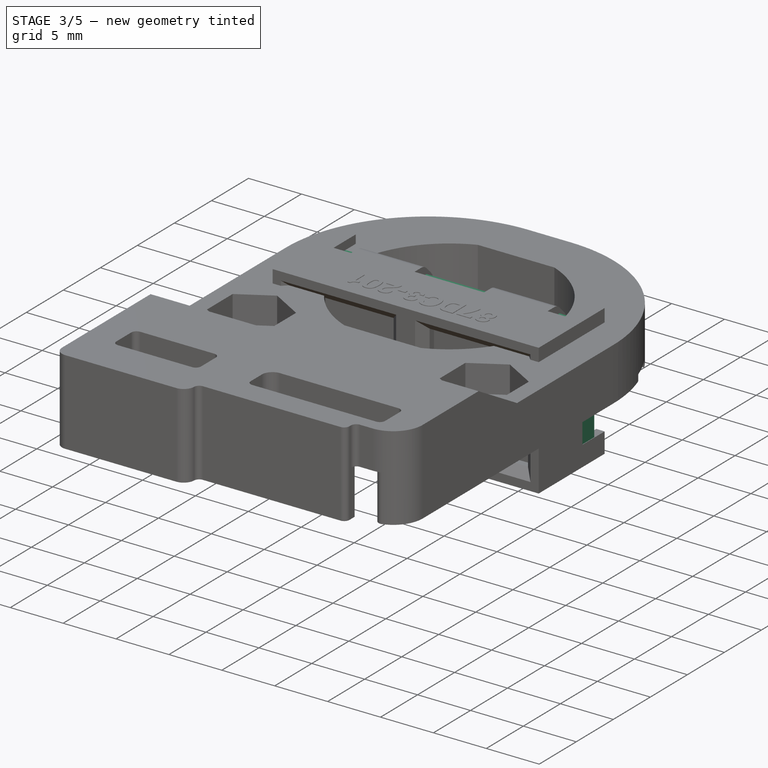
[diagram: stage 3 of 5 — iso view after this stage's code; geometry added in this stage tinted green]
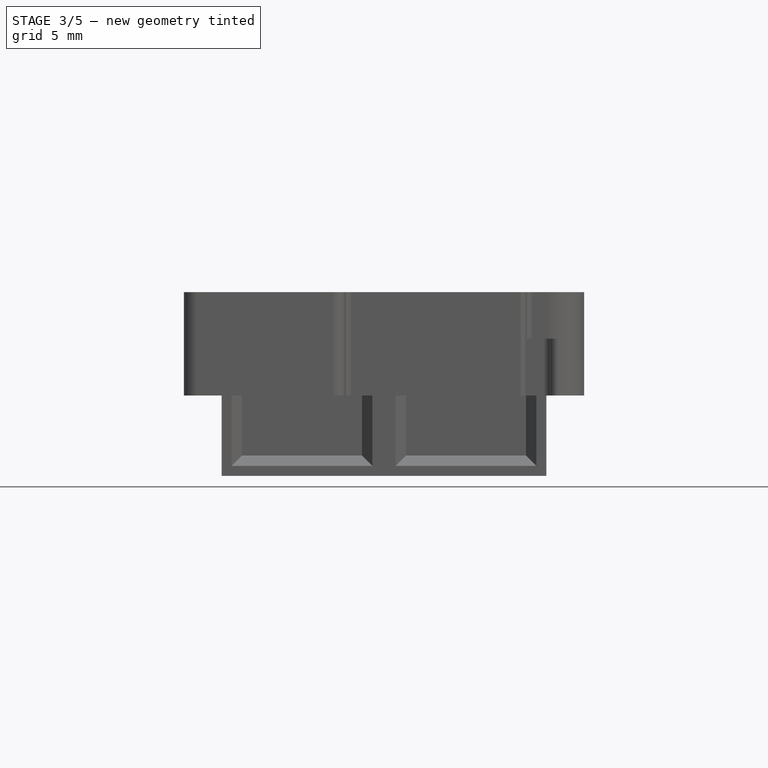
[diagram: stage 3 of 5 — front view after this stage's code; geometry added in this stage tinted green]
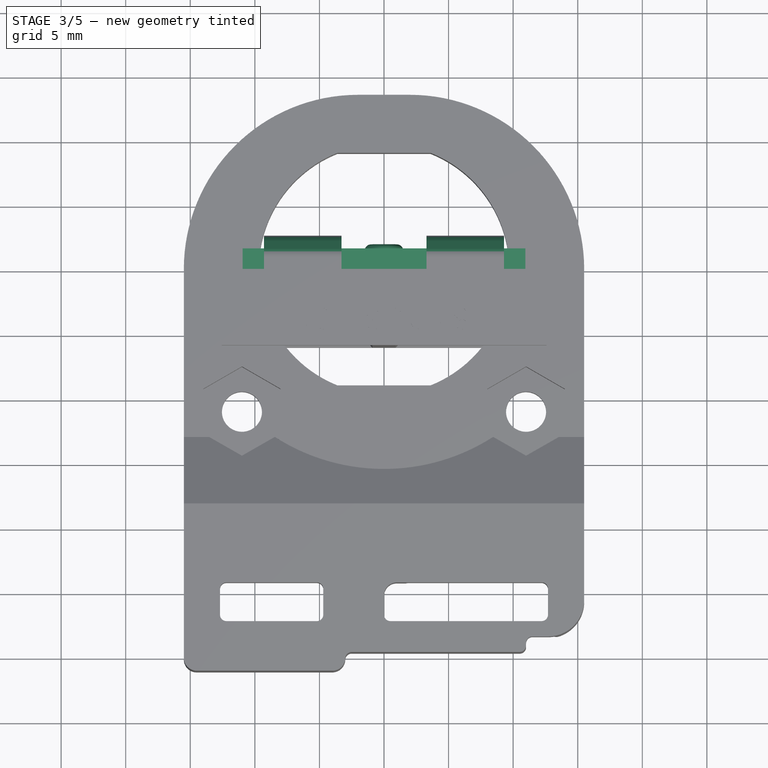
[diagram: stage 3 of 5 — top view after this stage's code; geometry added in this stage tinted green]
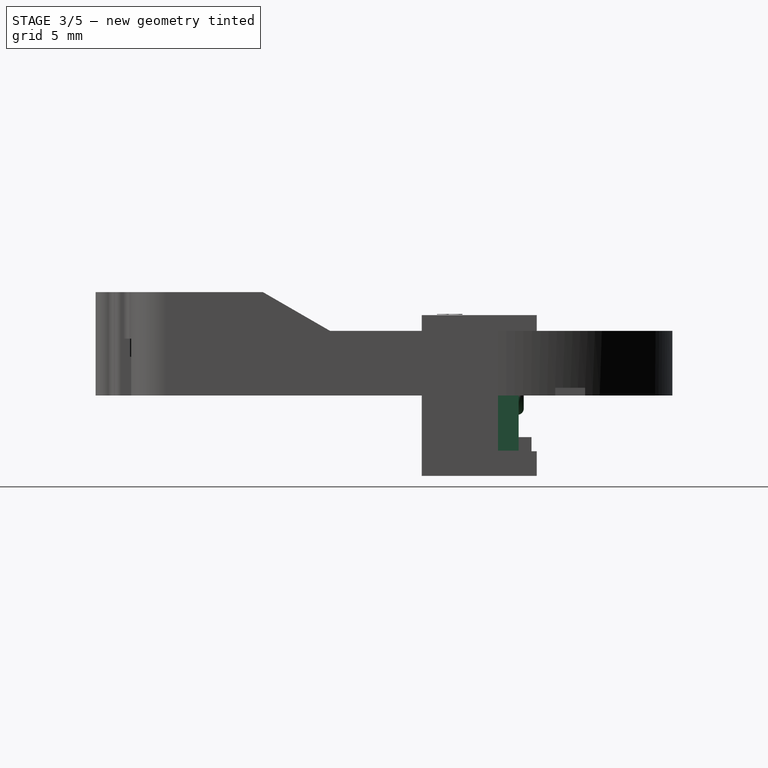
[diagram: stage 3 of 5 — right view after this stage's code; geometry added in this stage tinted green]
FEATURE [PartDesign::Pad] Pad008  label="PCBPad"
  Length = 1.6
  Length2 = 100
  Placement = pos=(0,0,0) rot=(1,0,0;1.5708rad)
  Profile = -> Sketch012
  Reversed = true
  Type = 0
FEATURE [Part::Part2DObjectPython] ShapeString  label="LabelTextShapeString"  # Draft 2D object (typed FeaturePython)
  AttachmentOffset = pos=(-6.75,2.8,0.01) rot=(0,0,1;0rad)
  FontFile = <path>
  MapMode = 5
  Placement = pos=(-6.75,2.8,0.06) rot=(0,0,1;0rad)
  Size = 1
  String = 87DC3-201
  Support = -> [Pad007]
  Tracking = 0.05
FEATURE [Part::Extrusion] Extrude  label="LabelTextExtrude"
  Base = -> ShapeString
  Dir = (0,0,1)
  DirMode = 2
  FaceMakerClass = Part::FaceMakerBullseye
  LengthFwd = 0.05
  LengthRev = 0
  Placement = pos=(0,0,6.2) rot=(0,0,1;3.14159rad)
  Solid = true
  Symmetric = false
FEATURE [Sketcher::SketchObject] Sketch008
  MapMode = 5
  Placement = pos=(0,0,0) rot=(-1,0,0;1.5708rad)
  Support = -> [Pad004]
  sketch-geometry (1):
    g0: Circle CenterX=0 CenterY=0 CenterZ=0 NormalX=0 NormalY=0 NormalZ=1 AngleXU=0 Radius=1.5
  constraints (2):
    c: Coincident(g0,g-1)
    c: Diameter(g0) = 3
FEATURE [PartDesign::Pad] Pad005
  BaseFeature = -> Pad004
  Length = 2
  Length2 = 100
  Placement = pos=(0,0,0) rot=(1,0,0;1.5708rad)
  Profile = -> Sketch008
  Type = 0
FEATURE [PartDesign::Fillet] Fillet004
  Base = -> Pad005 [Edge179]
  BaseFeature = -> Pad005
  Placement = pos=(0,0,0) rot=(1,0,0;1.5708rad)
  Radius = 0.5
FEATURE [PartDesign::Chamfer] Chamfer003
  Base = -> Fillet004 [Edge146,Edge147,Edge130,Edge129]
  BaseFeature = -> Fillet004
  Placement = pos=(0,0,0) rot=(1,0,0;1.5708rad)
  Size = 1.3
FEATURE [PartDesign::Fillet] Fillet003
  Base = -> Chamfer003 [Edge10,Edge151,Edge156,Edge158]
  BaseFeature = -> Chamfer003
  Placement = pos=(0,0,0) rot=(1,0,0;1.5708rad)
  Radius = 1.5
FEATURE [PartDesign::Fillet] Fillet002
  Base = -> Fillet003 [Edge164,Edge165,Edge145,Edge9]
  BaseFeature = -> Fillet003
  Placement = pos=(0,0,0) rot=(1,0,0;1.5708rad)
  Radius = 1
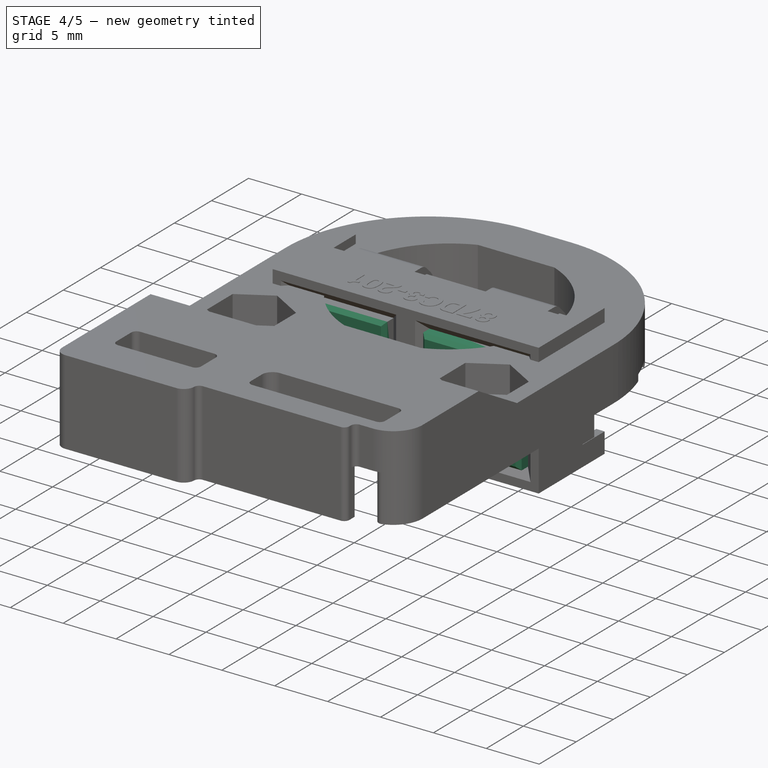
[diagram: stage 4 of 5 — iso view after this stage's code; geometry added in this stage tinted green]
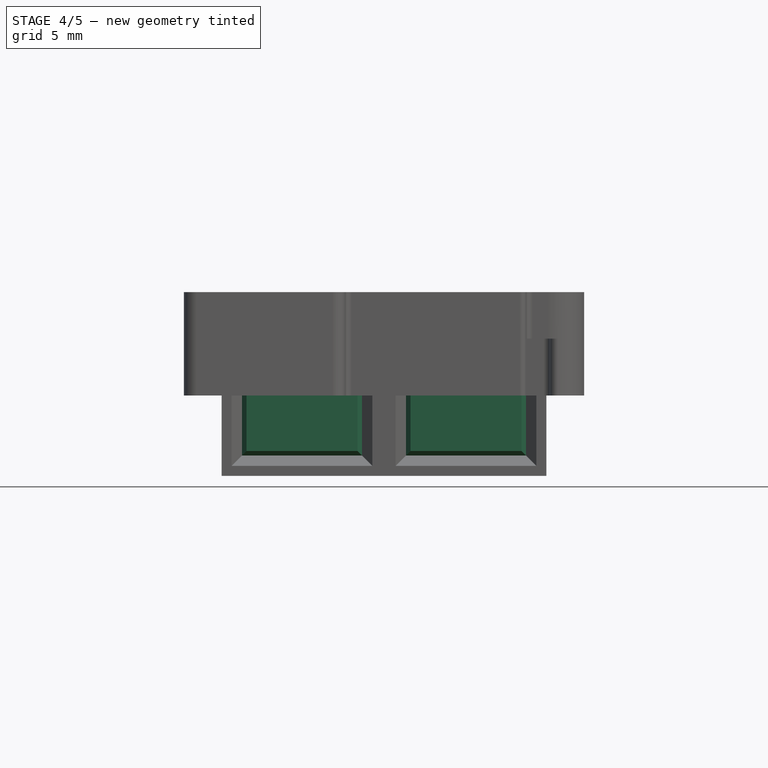
[diagram: stage 4 of 5 — front view after this stage's code; geometry added in this stage tinted green]
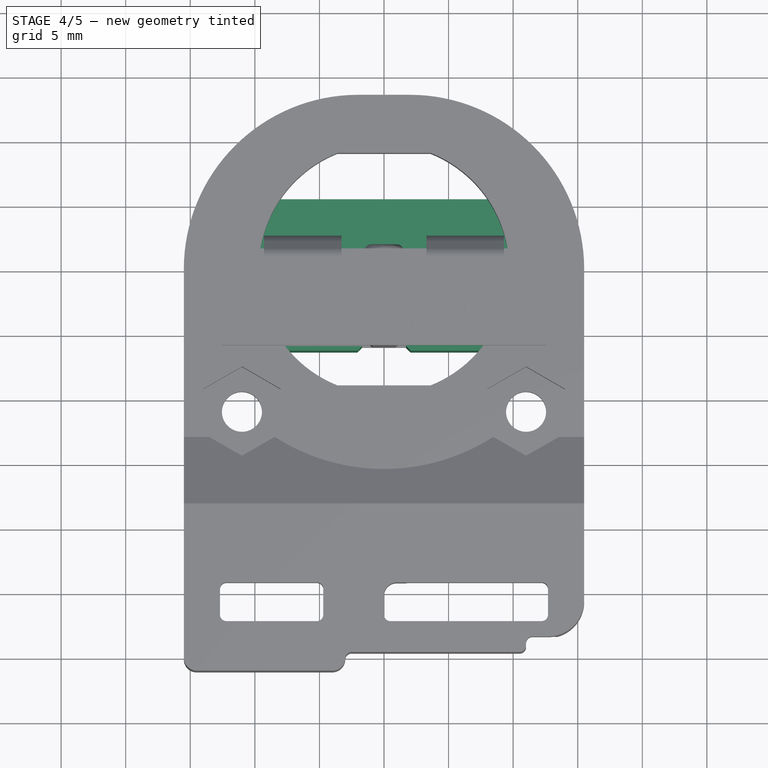
[diagram: stage 4 of 5 — top view after this stage's code; geometry added in this stage tinted green]
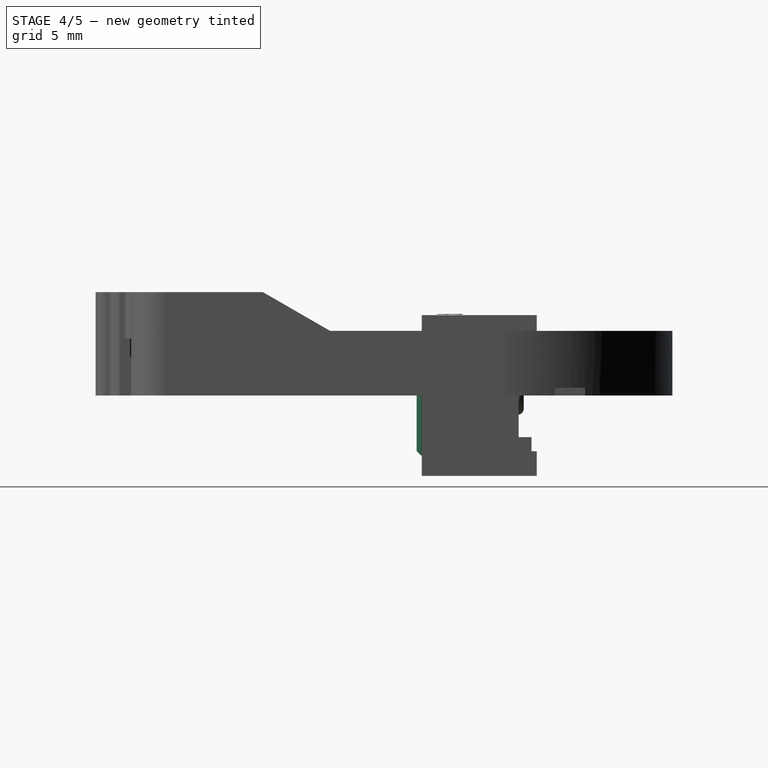
[diagram: stage 4 of 5 — right view after this stage's code; geometry added in this stage tinted green]
FEATURE [PartDesign::FeatureBase] BaseFeature
  BaseFeature = -> Pad007
FEATURE [Sketcher::SketchObject] Sketch009
  ExternalGeometry = -> [Fillet002]
  MapMode = 5
  Placement = pos=(0,5.2e-15,3.225) rot=(1,0,0;3.14159rad)
  Support = -> [Fillet002]
  sketch-geometry (4):
    g0: LineSegment StartX=-9.2875 StartY=2e-16 StartZ=0 EndX=-3.2875 EndY=2e-16 EndZ=0
    g1: LineSegment StartX=-3.2875 StartY=2e-16 StartZ=0 EndX=-3.2875 EndY=-1.6 EndZ=0
    g2: LineSegment StartX=-3.2875 StartY=-1.6 StartZ=0 EndX=-9.2875 EndY=-1.6 EndZ=0
    g3: LineSegment StartX=-9.2875 StartY=-1.6 StartZ=0 EndX=-9.2875 EndY=2e-16 EndZ=0
  constraints (10):
    c: Coincident(g0,g1)
    c: Coincident(g1,g2)
    c: Coincident(g2,g3)
    c: Coincident(g3,g0)
    c: Vertical(g1)
    c: Coincident(g0,g-3)
    c: DistanceY(g1,g1) = 1.6
    c: Equal(g3,g1)
    c: Equal(g2,g0)
    c: Coincident(g0,g-4)
FEATURE [PartDesign::Pocket] Pocket006
  BaseFeature = -> Fillet002
  Length = 1.8
  Length2 = 100
  Placement = pos=(0,0,0) rot=(1,0,0;1.5708rad)
  Profile = -> Sketch009
  Type = 0
FEATURE [Sketcher::SketchObject] Sketch010
  ExternalGeometry = -> [Pocket006]
  MapMode = 5
  Placement = pos=(0,5.2e-15,3.225) rot=(1,0,0;3.14159rad)
  Support = -> [Pocket006]
  sketch-geometry (4):
    g0: LineSegment StartX=3.2875 StartY=0 StartZ=0 EndX=9.2875 EndY=2e-16 EndZ=0
    g1: LineSegment StartX=9.2875 StartY=2e-16 StartZ=0 EndX=9.2875 EndY=-1.6 EndZ=0
    g2: LineSegment StartX=9.2875 StartY=-1.6 StartZ=0 EndX=3.2875 EndY=-1.6 EndZ=0
    g3: LineSegment StartX=3.2875 StartY=-1.6 StartZ=0 EndX=3.2875 EndY=0 EndZ=0
  constraints (10):
    c: Coincident(g0,g1)
    c: Coincident(g1,g2)
    c: Coincident(g2,g3)
    c: Coincident(g3,g0)
    c: Horizontal(g2)
    c: Vertical(g1)
    c: Vertical(g3)
    c: Coincident(g0,g-3)
    c: Coincident(g0,g-4)
    c: DistanceY(g1,g1) = 1.6
FEATURE [PartDesign::Pocket] Pocket007
  BaseFeature = -> Pocket006
  Length = 1.8
  Length2 = 100
  Placement = pos=(0,0,0) rot=(1,0,0;1.5708rad)
  Profile = -> Sketch010
  Type = 0
FEATURE [PartDesign::Plane] DatumPlane001
  Length = 24.4855
  MapMode = 45
  Placement = pos=(-1.37e-14,1.3,-3.225) rot=(0,0,1;1.5708rad)
  ResizeMode = 0
  Support = -> [Pocket007]
  Width = 29.6355
FEATURE [Sketcher::SketchObject] Sketch014
  ExternalGeometry = -> [Pocket007]
  MapMode = 5
  Placement = pos=(-1.37e-14,1.3,-3.225) rot=(0,0,1;1.5708rad)
  Support = -> [DatumPlane001]
  sketch-geometry (8):
    g0: LineSegment StartX=-1.3 StartY=9.2875 StartZ=0 EndX=0.3 EndY=9.2875 EndZ=0
    g1: LineSegment StartX=0.3 StartY=9.2875 StartZ=0 EndX=0.3 EndY=3.2875 EndZ=0
    g2: LineSegment StartX=0.3 StartY=3.2875 StartZ=0 EndX=-1.3 EndY=3.2875 EndZ=0
    g3: LineSegment StartX=-1.3 StartY=3.2875 StartZ=0 EndX=-1.3 EndY=9.2875 EndZ=0
    g4: LineSegment StartX=-1.3 StartY=-3.2875 StartZ=0 EndX=0.3 EndY=-3.2875 EndZ=0
    g5: LineSegment StartX=0.3 StartY=-3.2875 StartZ=0 EndX=0.3 EndY=-9.2875 EndZ=0
    g6: LineSegment StartX=0.3 StartY=-9.2875 StartZ=0 EndX=-1.3 EndY=-9.2875 EndZ=0
    g7: LineSegment StartX=-1.3 StartY=-9.2875 StartZ=0 EndX=-1.3 EndY=-3.2875 EndZ=0
  constraints (20):
    c: Coincident(g0,g1)
    c: Coincident(g1,g2)
    c: Coincident(g2,g3)
    c: Coincident(g3,g0)
    c: Horizontal(g0)
    c: Horizontal(g2)
    c: Vertical(g1)
    c: Coincident(g0,g-3)
    c: Coincident(g4,g5)
    c: Coincident(g5,g6)
    c: Coincident(g6,g7)
    c: Coincident(g7,g4)
    c: Horizontal(g4)
    c: Horizontal(g6)
    c: Vertical(g5)
    c: Coincident(g4,g-5)
    c: Coincident(g2,g-4)
    c: Coincident(g6,g-6)
    c: DistanceX(g4,g4) = 1.6
    c: Equal(g4,g2)
FEATURE [PartDesign::Pocket] Pocket005  label="BodyFinal_pad"
  BaseFeature = -> Pocket007
  Length = 1.8
  Length2 = 100
  Placement = pos=(0,0,0) rot=(1,0,0;1.5708rad)
  Profile = -> Sketch014
  Type = 0
FEATURE [PartDesign::Plane] DatumPlane
  Length = 29.6355
  MapMode = 5
  Placement = pos=(0,-4.5,3.4e-15) rot=(1,0,0;1.5708rad)
  ResizeMode = 0
  Support = -> [Chamfer]
  Width = 24.4855
FEATURE [Sketcher::SketchObject] Sketch011  label="SketchRightBtn"
  MapMode = 5
  Placement = pos=(0,-4.5,3.4e-15) rot=(1,0,0;1.5708rad)
  Support = -> [DatumPlane]
  sketch-geometry (5):
    g0: LineSegment StartX=1.7 StartY=4.65 StartZ=0 EndX=11 EndY=4.65 EndZ=0
    g1: LineSegment StartX=11 StartY=4.65 StartZ=0 EndX=11 EndY=-4.65 EndZ=0
    g2: LineSegment StartX=11 StartY=-4.65 StartZ=0 EndX=1.7 EndY=-4.65 EndZ=0
    g3: LineSegment StartX=1.7 StartY=-4.65 StartZ=0 EndX=1.7 EndY=4.65 EndZ=0
    g4: LineSegment [constr] StartX=6.35 StartY=4.65 StartZ=0 EndX=6.35 EndY=-4.65 EndZ=0
  constraints (14):
    c: Coincident(g0,g1)
    c: Coincident(g1,g2)
    c: Coincident(g2,g3)
    c: Coincident(g3,g0)
    c: Horizontal(g0)
    c: Horizontal(g2)
    c: Vertical(g1)
    c: DistanceY(g3,g3) = 9.3
    c: DistanceX(g0,g0) = 9.3
    c: Symmetric(g0,g2,g-1)
    c: PointOnObject(g4,g0)
    c: PointOnObject(g4,g2)
    c: Symmetric(g0,g0,g4)
    c: DistanceX(g4,g-1) = -6.35
FEATURE [PartDesign::Pad] Pad002
  Length = 1.8
  Length2 = 100
  Placement = pos=(0,-4.5,5e-15) rot=(1,0,0;1.5708rad)
  Profile = -> Sketch011
  Type = 0
FEATURE [PartDesign::Chamfer] Chamfer002  label="BtnRightChamfer"
  Base = -> Pad002 [Face6]
  BaseFeature = -> Pad002
  Placement = pos=(0,-4.5,5e-15) rot=(1,0,0;1.5708rad)
  Size = 0.35
FEATURE [PartDesign::Body] Body002  label="ButtonRightBody"
  Group = -> [Sketch011,Pad002,Chamfer002]
  Origin = -> Origin002
  Tip = -> Chamfer002
FEATURE [PartDesign::Body] Body005  label="87DC3-201Body"
  Group = -> [Sketch013,Pad001,Sketch018,Pocket008,Chamfer,DatumPlane,Sketch015,Pad003,Sketch007,Pad004,Sketch008,Pad005,Fillet004,Chamfer003,Fillet003,Fillet002,Sketch009,Pocket006,Sketch010,Pocket007,DatumPlane001,Sketch014,Pocket005]
  Origin = -> Origin006
  Tip = -> Pocket005
FEATURE [Sketcher::SketchObject] Sketch016  label="SketchLeftBtn"
  MapMode = 5
  Placement = pos=(0,-4.5,3.4e-15) rot=(1,0,0;1.5708rad)
  Support = -> [DatumPlane]
  sketch-geometry (5):
    g0: LineSegment StartX=-11 StartY=4.65 StartZ=0 EndX=-1.7 EndY=4.65 EndZ=0
    g1: LineSegment StartX=-1.7 StartY=4.65 StartZ=0 EndX=-1.7 EndY=-4.65 EndZ=0
    g2: LineSegment StartX=-1.7 StartY=-4.65 StartZ=0 EndX=-11 EndY=-4.65 EndZ=0
    g3: LineSegment StartX=-11 StartY=-4.65 StartZ=0 EndX=-11 EndY=4.65 EndZ=0
    g4: LineSegment [constr] StartX=-6.35 StartY=4.65 StartZ=0 EndX=-6.35 EndY=-4.65 EndZ=0
  constraints (14):
    c: Coincident(g0,g1)
    c: Coincident(g1,g2)
    c: Coincident(g2,g3)
    c: Coincident(g3,g0)
    c: Horizontal(g0)
    c: Horizontal(g2)
    c: Vertical(g1)
    c: DistanceY(g3,g3) = 9.3
    c: DistanceX(g0,g0) = 9.3
    c: Symmetric(g0,g2,g-1)
    c: PointOnObject(g4,g0)
    c: PointOnObject(g4,g2)
    c: Symmetric(g0,g0,g4)
    c: DistanceX(g4,g-1) = 6.35
FEATURE [PartDesign::Pad] Pad006
  Length = 1.8
  Length2 = 100
  Placement = pos=(0,-4.5,5e-15) rot=(1,0,0;1.5708rad)
  Profile = -> Sketch016
  Type = 0
FEATURE [PartDesign::Chamfer] Chamfer001  label="BtnLeftChamfer"
  Base = -> Pad006 [Face6]
  BaseFeature = -> Pad006
  Placement = pos=(0,-4.5,5e-15) rot=(1,0,0;1.5708rad)
  Size = 0.35
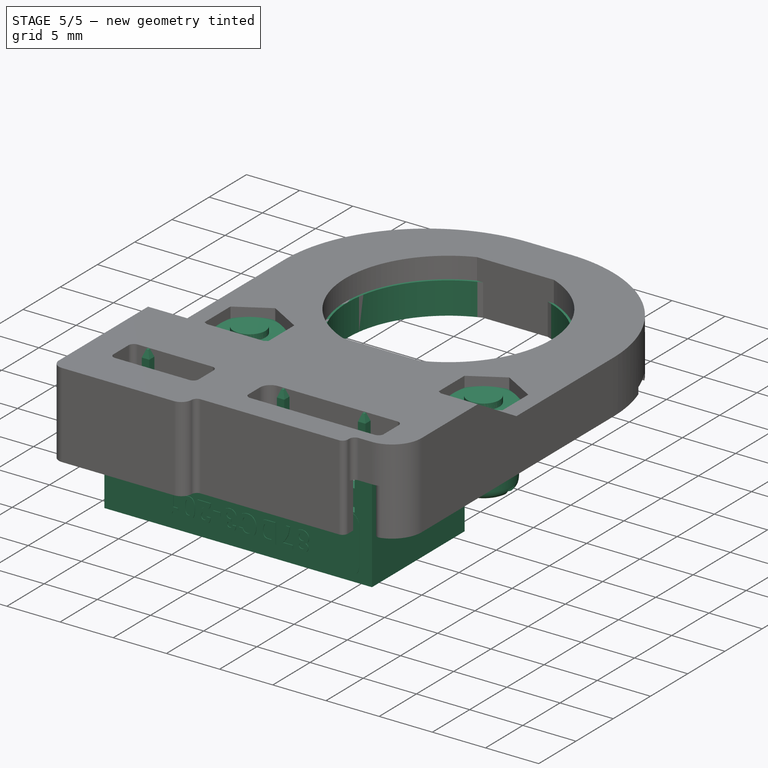
[diagram: stage 5 of 5 — iso view after this stage's code; geometry added in this stage tinted green]
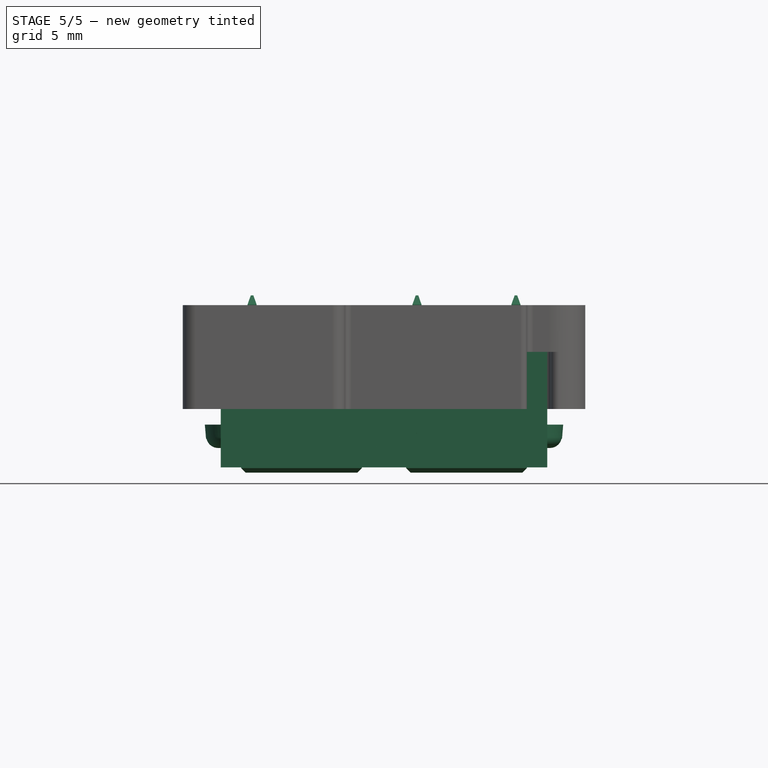
[diagram: stage 5 of 5 — front view after this stage's code; geometry added in this stage tinted green]
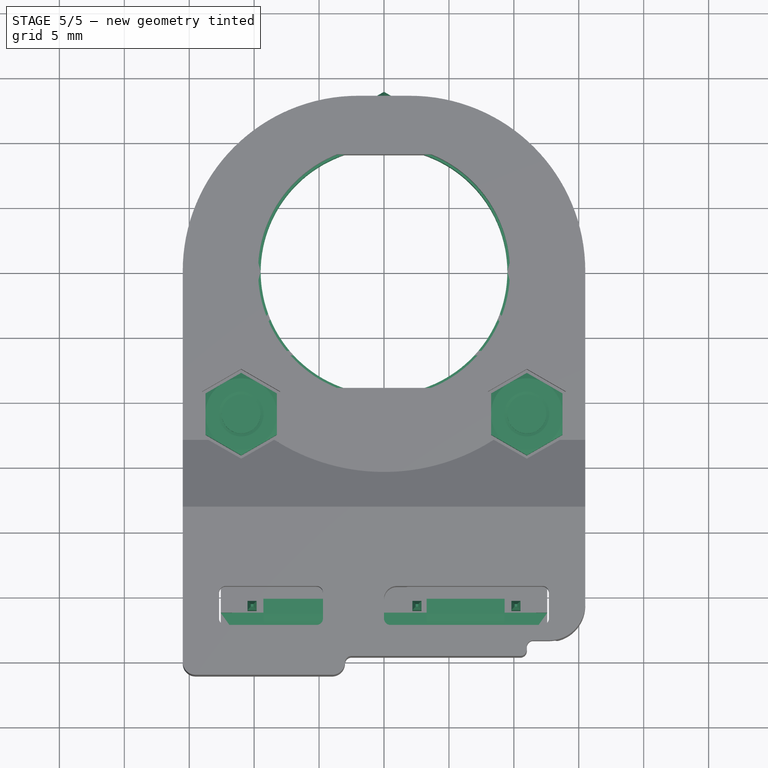
[diagram: stage 5 of 5 — top view after this stage's code; geometry added in this stage tinted green]
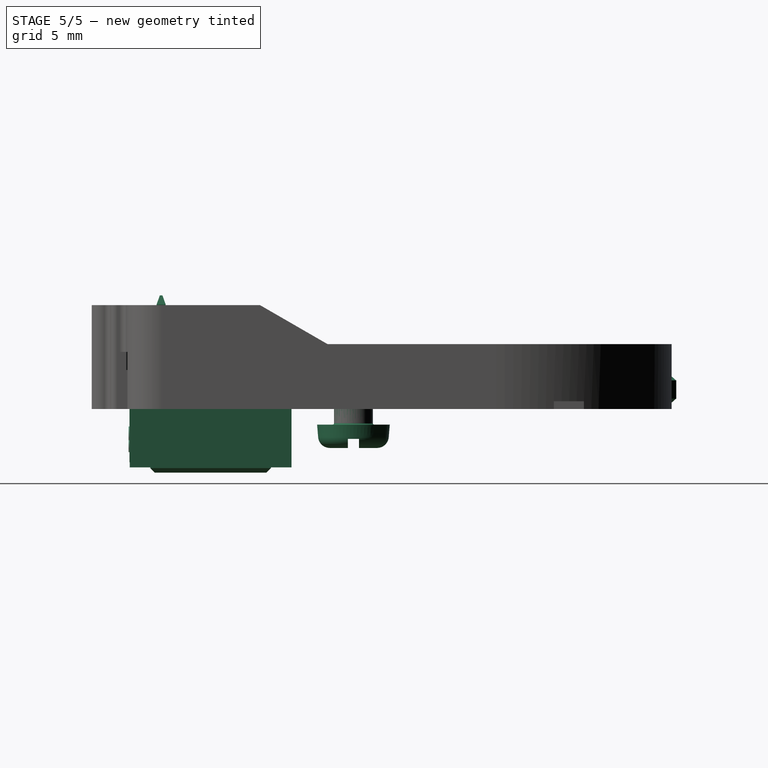
[diagram: stage 5 of 5 — right view after this stage's code; geometry added in this stage tinted green]
FEATURE [PartDesign::Body] Body001  label="ButtonLeftBody"
  Group = -> [Sketch016,Pad006,Chamfer001]
  Origin = -> Origin001
  Tip = -> Chamfer001
FEATURE [Part::FeaturePython] Screw  label="M3x6-Screw"  # Fasteners workbench fastener (typed FeaturePython)
  Placement = pos=(-11,-11,-1.2) rot=(1,0,0;3.14159rad)
  diameter = 4
  invert = false
  length = 1
  lengthCustom = 6
  matchOuter = false
  offset = 0
  thread = false
  type = 11
FEATURE [Part::FeaturePython] Screw001  label="M3x6-Screw001"  # Fasteners workbench fastener (typed FeaturePython)
  Placement = pos=(11,-11,-1.2) rot=(1,0,0;3.14159rad)
  diameter = 4
  invert = false
  length = 1
  lengthCustom = 6
  matchOuter = false
  offset = 0
  thread = false
  type = 11
FEATURE [Part::FeaturePython] Nut  label="M3-Nut"  # Fasteners workbench fastener (typed FeaturePython)
  Placement = pos=(-11,-11,2.5) rot=(0,0,1;0.523599rad)
  diameter = 4
  invert = false
  matchOuter = false
  offset = 0
  thread = false
  type = 6
FEATURE [Part::FeaturePython] Nut001  label="M3-Nut001"  # Fasteners workbench fastener (typed FeaturePython)
  Placement = pos=(11,-11,2.5) rot=(0,0,1;0.523599rad)
  diameter = 4
  invert = false
  matchOuter = false
  offset = 0
  thread = false
  type = 6
FEATURE [Part::Feature] Part__Feature003  label="RSpro_PowerButton_Blue"
  Placement = pos=(0,0,-6.4) rot=(0,0,-1;1.5708rad)
  shape: bbox 25 x 25 x 37 mm, 75 faces (baked)
FEATURE [Sketcher::SketchObject] Sketch019
  MapMode = 5
  Support = -> [XY_Plane007]
  sketch-geometry (8):
    g0: LineSegment StartX=12 StartY=-6.9282 StartZ=0 EndX=12 EndY=6.9282 EndZ=0
    g1: LineSegment StartX=12 StartY=6.9282 StartZ=0 EndX=1.8e-15 EndY=13.8564 EndZ=0
    g2: LineSegment StartX=1.3e-15 StartY=13.8564 StartZ=0 EndX=-12 EndY=6.9282 EndZ=0
    g3: LineSegment StartX=-12 StartY=6.9282 StartZ=0 EndX=-12 EndY=-6.9282 EndZ=0
    g4: LineSegment StartX=-12 StartY=-6.9282 StartZ=0 EndX=0 EndY=-13.8564 EndZ=0
    g5: LineSegment StartX=0 StartY=-13.8564 StartZ=0 EndX=12 EndY=-6.9282 EndZ=0
    g6: Circle [constr] CenterX=0 CenterY=0 CenterZ=0 NormalX=0 NormalY=0 NormalZ=1 AngleXU=0 Radius=13.8564
    g7: Circle CenterX=0 CenterY=0 CenterZ=0 NormalX=0 NormalY=0 NormalZ=1 AngleXU=0 Radius=9.5
  constraints (18):
    c: Coincident(g0,g1)
    c: Coincident(g1,g2)
    c: Coincident(g2,g3)
    c: Coincident(g3,g4)
    c: Coincident(g4,g5)
    c: Coincident(g5,g0)
    c: Equal(g0, g1-g5) x5
    c: PointOnObject(g0,g6)
    c: PointOnObject(g1,g6)
    c: PointOnObject(g2,g6)
    c: PointOnObject(g3,g6)
    c: PointOnObject(g4,g6)
    c: PointOnObject(g5,g6)
    c: Coincident(g6,g-1)
    c: Vertical(g0)
    c: Distance(g2,g0) = 24
    c: Coincident(g7,g-1)
    c: Diameter(g7) = 19
FEATURE [PartDesign::Pad] Pad009
  Length = 3
  Length2 = 100
  Profile = -> Sketch019
  Type = 0
FEATURE [PartDesign::Chamfer] Chamfer005
  Base = -> Pad009 [Edge4,Edge18,Edge16,Edge13,Edge10,Edge7]
  BaseFeature = -> Pad009
  Size = 0.8
FEATURE [PartDesign::Chamfer] Chamfer004
  Base = -> Chamfer005 [Edge12,Edge13,Edge14,Edge7,Edge3,Edge11]
  BaseFeature = -> Chamfer005
  Size = 0.8
FEATURE [PartDesign::Body] Body006  label="HexNut_M19_thin"
  Group = -> [Sketch019,Pad009,Chamfer005,Chamfer004]
  Origin = -> Origin007
  Placement = pos=(0,0,5) rot=(0,0,1;0rad)
  Tip = -> Chamfer004
FEATURE [Part::Feature] Part__Feature004  label="PinHeader_1x03_P254mm_Vertical"
  Placement = pos=(0,-30.89,0) rot=(0,0,1;1.5708rad)
  shape: bbox 7.62 x 2.54 x 11.54 mm, 76 faces (baked)
FEATURE [Part::Compound] Compound  label="Compound_Grayhill_87DC3-201"
  Links = -> [Body005,Body002,Body004,Body001,Pad007,Part__Feature001,Part__Feature,Body003,Part__Feature002,Extrude]
  Placement = pos=(0,-22,1.4) rot=(1,0,0;1.5708rad)
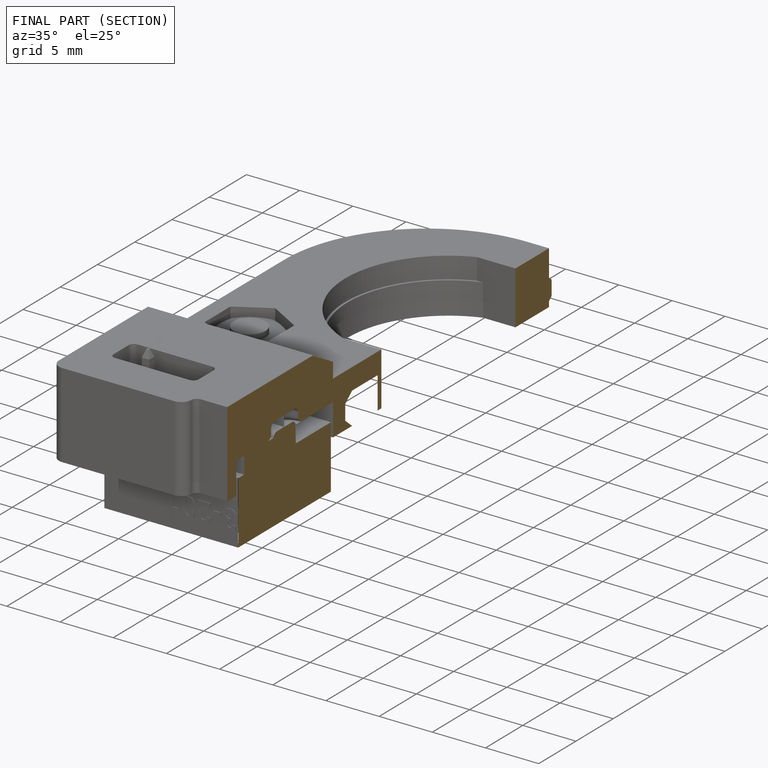
[diagram: finished part — half-section view (interior)]
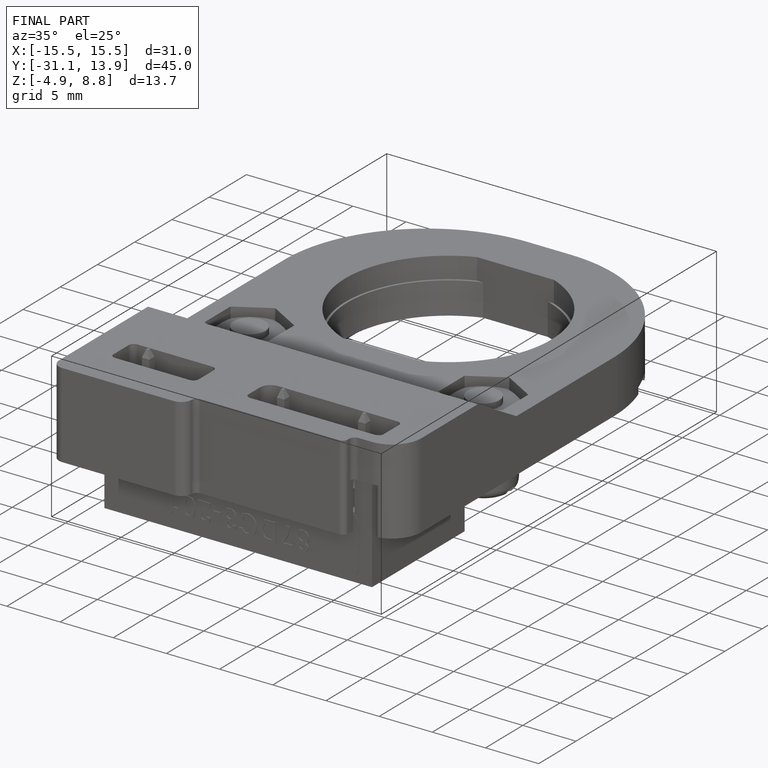
[diagram: finished part — iso view with bounding-box wireframe]
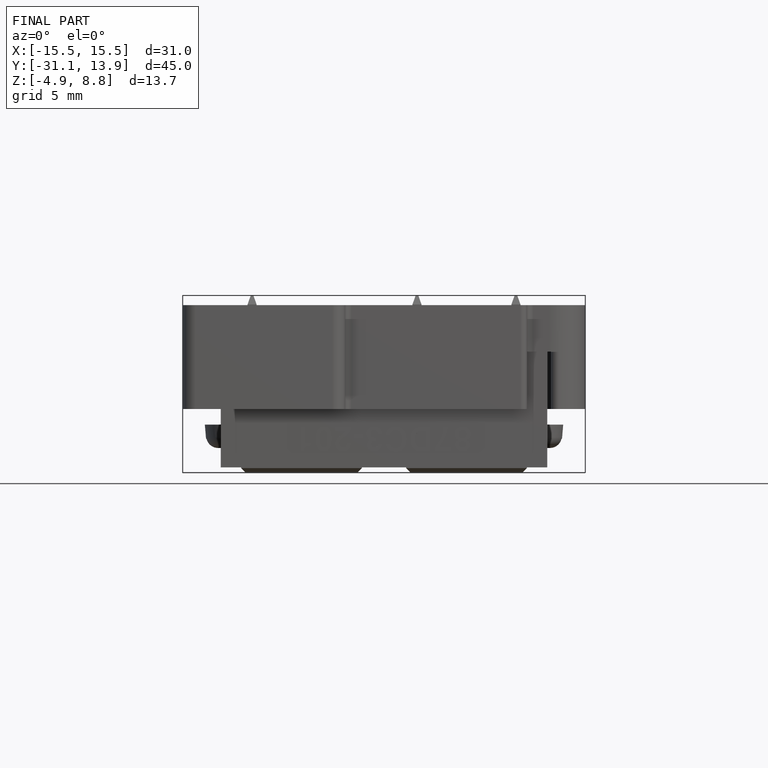
[diagram: finished part — front view with bounding-box wireframe]
